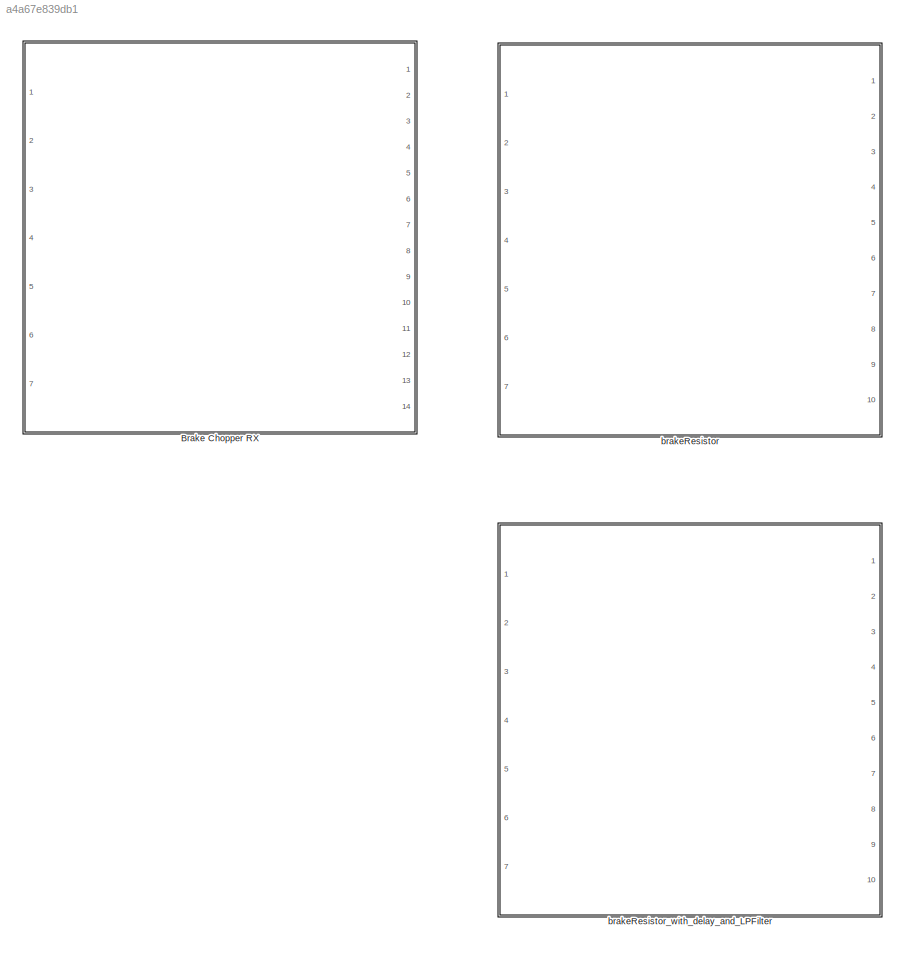
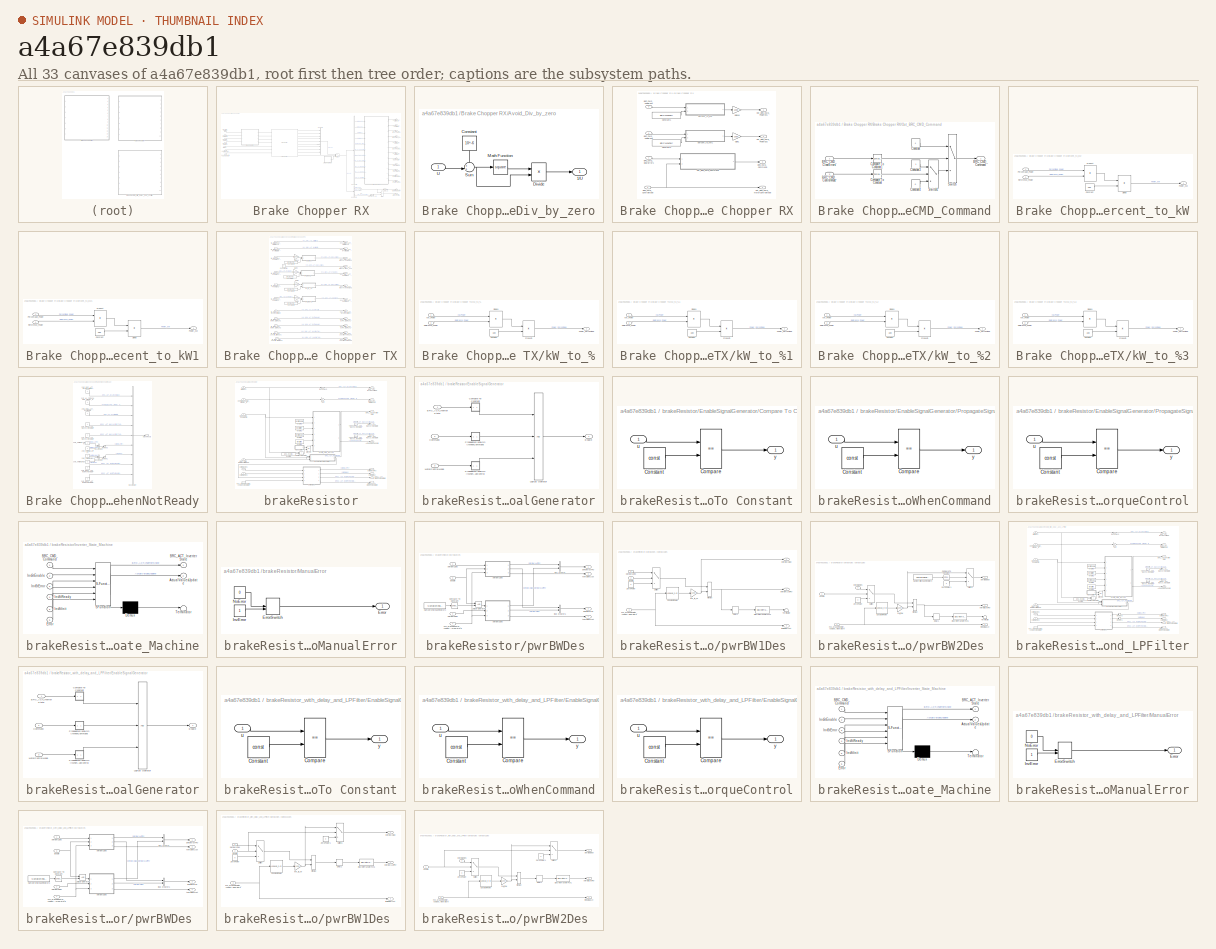
[diagram: thumbnail index - all 33 canvases of the model, root first then tree order]
MODEL slx_a4a67e839db1
KIND library
CONFIG AbsTol = auto
CONFIG FixedStep = 0.001
CONFIG MaxStep = auto
CONFIG MinStep = auto
CONFIG RelTol = 1e-3
CONFIG SampleTimeConstraint = Unconstrained
CONFIG Solver = ode1
CONFIG SolverMode = Auto
CONFIG SolverName = ode1
CONFIG StartTime = 0.0
CONFIG StopTime = Inf
BLOCK [SubSystem] Brake Chopper RX
  Ports = [7, 14]
  RequestExecContextInheritance = off
  Variant = off
BLOCK [Sum] Brake Chopper RX/Add
  InputSameDT = off
  OutDataTypeStr = Inherit: Inherit via internal rule
  Ports = [2, 1]
  SaturateOnIntegerOverflow = off
BLOCK [SubSystem] Brake Chopper RX/Avoid_Div_by_zero
  Ports = [1, 1]
  RequestExecContextInheritance = off
  Variant = off
BLOCK [Outport] Brake Chopper RX/Avoid_Div_by_zero/1//U
  IconDisplay = Port number
BLOCK [Constant] Brake Chopper RX/Avoid_Div_by_zero/Constant
  Value = 10^-6
BLOCK [Product] Brake Chopper RX/Avoid_Div_by_zero/Divide
  InputSameDT = off
  Inputs = /*
  OutDataTypeStr = Inherit: Inherit via internal rule
  Ports = [2, 1]
  RndMeth = Floor
  SaturateOnIntegerOverflow = off
BLOCK [Math] Brake Chopper RX/Avoid_Div_by_zero/Math Function
  Operator = square
  Ports = [1, 1]
BLOCK [Sum] Brake Chopper RX/Avoid_Div_by_zero/Sum
  IconShape = round
  InputSameDT = off
  Inputs = ++|
  OutDataTypeStr = Inherit: Inherit via internal rule
  Ports = [2, 1]
  SaturateOnIntegerOverflow = off
BLOCK [Inport] Brake Chopper RX/Avoid_Div_by_zero/U
  IconDisplay = Port number
BLOCK [Inport] Brake Chopper RX/BRC_CMD_ClearErrors
  IconDisplay = Port number
BLOCK [Inport] Brake Chopper RX/BRC_CMD_ControlMode
  IconDisplay = Port number
  Port = 2
BLOCK [Inport] Brake Chopper RX/BRC_CMD_PowerCh1
  IconDisplay = Port number
  Port = 3
BLOCK [Inport] Brake Chopper RX/BRC_CMD_PowerCh2
  IconDisplay = Port number
  Port = 4
BLOCK [SubSystem] Brake Chopper RX/Brake Chopper RX
  Ports = [4, 4]
  RequestExecContextInheritance = off
  Variant = off
BLOCK [Inport] Brake Chopper RX/Brake Chopper RX/BRC_CMD_ClearErrors
  IconDisplay = Port number
BLOCK [Outport] Brake Chopper RX/Brake Chopper RX/BRC_CMD_Command
  IconDisplay = Port number
  Port = 3
BLOCK [Inport] Brake Chopper RX/Brake Chopper RX/BRC_CMD_ControlMode
  IconDisplay = Port number
  Port = 2
BLOCK [Inport] Brake Chopper RX/Brake Chopper RX/BRC_CMD_PowerCh1
  IconDisplay = Port number
  Port = 3
BLOCK [Inport] Brake Chopper RX/Brake Chopper RX/BRC_CMD_PowerCh2
  IconDisplay = Port number
  Port = 4
BLOCK [Constant] Brake Chopper RX/Brake Chopper RX/Constant1
  Value = BRCMaxPwr
BLOCK [Constant] Brake Chopper RX/Brake Chopper RX/Constant2
  Value = BRCMaxPwr
BLOCK [Gain] Brake Chopper RX/Brake Chopper RX/Gain1
  Gain = 1000
  OutDataTypeStr = Inherit: Inherit via internal rule
  ParamDataTypeStr = Inherit: Inherit via internal rule
  SaturateOnIntegerOverflow = off
BLOCK [Gain] Brake Chopper RX/Brake Chopper RX/Gain40
  Gain = 1000
  OutDataTypeStr = Inherit: Inherit via internal rule
  ParamDataTypeStr = Inherit: Inherit via internal rule
  SaturateOnIntegerOverflow = off
BLOCK [SubSystem] Brake Chopper RX/Brake Chopper RX/Out_BRC_CMD_Command
  Ports = [2, 1]
  RequestExecContextInheritance = off
  Variant = off
BLOCK [Inport] Brake Chopper RX/Brake Chopper RX/Out_BRC_CMD_Command/BRC_CMD_ClearErrors
  IconDisplay = Port number
BLOCK [Outport] Brake Chopper RX/Brake Chopper RX/Out_BRC_CMD_Command/BRC_CMD_Command
  IconDisplay = Port number
BLOCK [Inport] Brake Chopper RX/Brake Chopper RX/Out_BRC_CMD_Command/BRC_CMD_ControlMode
  IconDisplay = Port number
  Port = 2
BLOCK [Reference] Brake Chopper RX/Brake Chopper RX/Out_BRC_CMD_Command/Compare To Constant  REF=simulink/Logic and Bit
Operations/Compare
To Constant
  Ports = [1, 1]
  SourceBlock = simulink/Logic and Bit\nOperations/Compare\nTo Constant
  SourceType = Compare To Constant
BLOCK [Reference] Brake Chopper RX/Brake Chopper RX/Out_BRC_CMD_Command/Compare To Constant1  REF=simulink/Logic and Bit
Operations/Compare
To Constant
  Ports = [1, 1]
  SourceBlock = simulink/Logic and Bit\nOperations/Compare\nTo Constant
  SourceType = Compare To Constant
BLOCK [Constant] Brake Chopper RX/Brake Chopper RX/Out_BRC_CMD_Command/Constant
  Value = 4
BLOCK [Constant] Brake Chopper RX/Brake Chopper RX/Out_BRC_CMD_Command/Constant3
BLOCK [Constant] Brake Chopper RX/Brake Chopper RX/Out_BRC_CMD_Command/Constant4
  Value = 0
BLOCK [Switch] Brake Chopper RX/Brake Chopper RX/Out_BRC_CMD_Command/Switch
  InputSameDT = off
  SaturateOnIntegerOverflow = off
  Threshold = 0.5
BLOCK [Switch] Brake Chopper RX/Brake Chopper RX/Out_BRC_CMD_Command/Switch1
  InputSameDT = off
  SaturateOnIntegerOverflow = off
  Threshold = 0.5
BLOCK [Outport] Brake Chopper RX/Brake Chopper RX/Out_BRC_CMD_MotorControlMode
  IconDisplay = Port number
  Port = 4
BLOCK [Outport] Brake Chopper RX/Brake Chopper RX/Out_BRC_CMD_PowerCh1
  IconDisplay = Port number
BLOCK [Outport] Brake Chopper RX/Brake Chopper RX/Out_BRC_CMD_PowerCh2
  IconDisplay = Port number
  Port = 2
BLOCK [SubSystem] Brake Chopper RX/Brake Chopper RX/percent_to_kW
  Ports = [2, 1]
  RequestExecContextInheritance = off
  Variant = off
BLOCK [Constant] Brake Chopper RX/Brake Chopper RX/percent_to_kW/Constant
  Value = 100
BLOCK [Product] Brake Chopper RX/Brake Chopper RX/percent_to_kW/Divide
  InputSameDT = off
  Inputs = */
  OutDataTypeStr = Inherit: Inherit via internal rule
  Ports = [2, 1]
  RndMeth = Floor
  SaturateOnIntegerOverflow = off
BLOCK [Inport] Brake Chopper RX/Brake Chopper RX/percent_to_kW/Percentage_Power
  IconDisplay = Port number
BLOCK [Outport] Brake Chopper RX/Brake Chopper RX/percent_to_kW/Power_kW
  IconDisplay = Port number
BLOCK [Product] Brake Chopper RX/Brake Chopper RX/percent_to_kW/Product
  InputSameDT = off
  OutDataTypeStr = Inherit: Inherit via internal rule
  Ports = [2, 1]
  SaturateOnIntegerOverflow = off
BLOCK [Inport] Brake Chopper RX/Brake Chopper RX/percent_to_kW/Reference_Power
  IconDisplay = Port number
  Port = 2
BLOCK [SubSystem] Brake Chopper RX/Brake Chopper RX/percent_to_kW1
  Ports = [2, 1]
  RequestExecContextInheritance = off
  Variant = off
BLOCK [Constant] Brake Chopper RX/Brake Chopper RX/percent_to_kW1/Constant
  Value = 100
BLOCK [Product] Brake Chopper RX/Brake Chopper RX/percent_to_kW1/Divide
  InputSameDT = off
  Inputs = */
  OutDataTypeStr = Inherit: Inherit via internal rule
  Ports = [2, 1]
  RndMeth = Floor
  SaturateOnIntegerOverflow = off
BLOCK [Inport] Brake Chopper RX/Brake Chopper RX/percent_to_kW1/Percentage_Power
  IconDisplay = Port number
BLOCK [Outport] Brake Chopper RX/Brake Chopper RX/percent_to_kW1/Power_kW
  IconDisplay = Port number
BLOCK [Product] Brake Chopper RX/Brake Chopper RX/percent_to_kW1/Product
  InputSameDT = off
  OutDataTypeStr = Inherit: Inherit via internal rule
  Ports = [2, 1]
  SaturateOnIntegerOverflow = off
BLOCK [Inport] Brake Chopper RX/Brake Chopper RX/percent_to_kW1/Reference_Power
  IconDisplay = Port number
  Port = 2
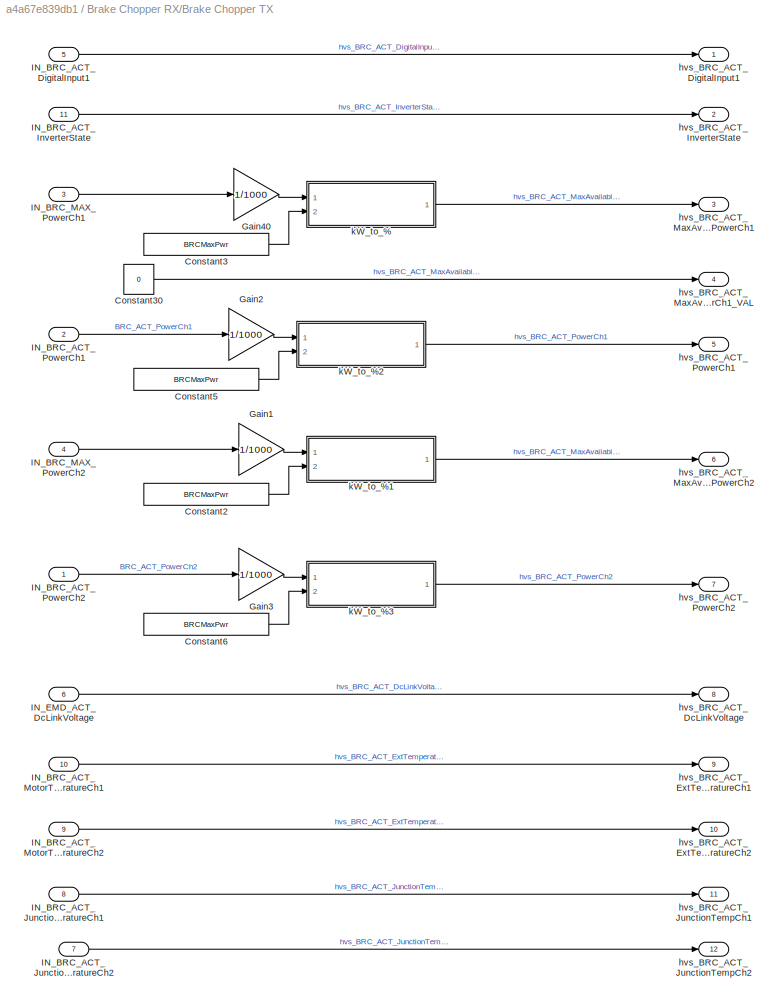
BLOCK [SubSystem] Brake Chopper RX/Brake Chopper TX
  Ports = [11, 12]
  RequestExecContextInheritance = off
  Variant = off
BLOCK [Constant] Brake Chopper RX/Brake Chopper TX/Constant2
  Value = BRCMaxPwr
BLOCK [Constant] Brake Chopper RX/Brake Chopper TX/Constant3
  Value = BRCMaxPwr
BLOCK [Constant] Brake Chopper RX/Brake Chopper TX/Constant30
  Value = 0
BLOCK [Constant] Brake Chopper RX/Brake Chopper TX/Constant5
  Value = BRCMaxPwr
BLOCK [Constant] Brake Chopper RX/Brake Chopper TX/Constant6
  Value = BRCMaxPwr
BLOCK [Gain] Brake Chopper RX/Brake Chopper TX/Gain1
  Gain = 1/1000
  OutDataTypeStr = Inherit: Inherit via internal rule
  ParamDataTypeStr = Inherit: Inherit via internal rule
  SaturateOnIntegerOverflow = off
BLOCK [Gain] Brake Chopper RX/Brake Chopper TX/Gain2
  Gain = 1/1000
  OutDataTypeStr = Inherit: Inherit via internal rule
  ParamDataTypeStr = Inherit: Inherit via internal rule
  SaturateOnIntegerOverflow = off
BLOCK [Gain] Brake Chopper RX/Brake Chopper TX/Gain3
  Gain = 1/1000
  OutDataTypeStr = Inherit: Inherit via internal rule
  ParamDataTypeStr = Inherit: Inherit via internal rule
  SaturateOnIntegerOverflow = off
BLOCK [Gain] Brake Chopper RX/Brake Chopper TX/Gain40
  Gain = 1/1000
  OutDataTypeStr = Inherit: Inherit via internal rule
  ParamDataTypeStr = Inherit: Inherit via internal rule
  SaturateOnIntegerOverflow = off
BLOCK [Inport] Brake Chopper RX/Brake Chopper TX/IN_BRC_ACT_DigitalInput1
  IconDisplay = Port number
  Port = 5
BLOCK [Inport] Brake Chopper RX/Brake Chopper TX/IN_BRC_ACT_InverterState
  IconDisplay = Port number
  Port = 11
BLOCK [Inport] Brake Chopper RX/Brake Chopper TX/IN_BRC_ACT_JunctionTemperatureCh1
  IconDisplay = Port number
  Port = 8
BLOCK [Inport] Brake Chopper RX/Brake Chopper TX/IN_BRC_ACT_JunctionTemperatureCh2
  IconDisplay = Port number
  Port = 7
BLOCK [Inport] Brake Chopper RX/Brake Chopper TX/IN_BRC_ACT_MotorTemperatureCh1
  IconDisplay = Port number
  Port = 10
BLOCK [Inport] Brake Chopper RX/Brake Chopper TX/IN_BRC_ACT_MotorTemperatureCh2
  IconDisplay = Port number
  Port = 9
BLOCK [Inport] Brake Chopper RX/Brake Chopper TX/IN_BRC_ACT_PowerCh1
  IconDisplay = Port number
  Port = 2
BLOCK [Inport] Brake Chopper RX/Brake Chopper TX/IN_BRC_ACT_PowerCh2
  IconDisplay = Port number
BLOCK [Inport] Brake Chopper RX/Brake Chopper TX/IN_BRC_MAX_PowerCh1
  IconDisplay = Port number
  Port = 3
BLOCK [Inport] Brake Chopper RX/Brake Chopper TX/IN_BRC_MAX_PowerCh2
  IconDisplay = Port number
  Port = 4
BLOCK [Inport] Brake Chopper RX/Brake Chopper TX/IN_EMD_ACT_DcLinkVoltage
  IconDisplay = Port number
  Port = 6
BLOCK [Outport] Brake Chopper RX/Brake Chopper TX/hvs_BRC_ACT_DcLinkVoltage
  IconDisplay = Port number
  Port = 8
BLOCK [Outport] Brake Chopper RX/Brake Chopper TX/hvs_BRC_ACT_DigitalInput1
  IconDisplay = Port number
BLOCK [Outport] Brake Chopper RX/Brake Chopper TX/hvs_BRC_ACT_ExtTemperatureCh1
  IconDisplay = Port number
  Port = 9
BLOCK [Outport] Brake Chopper RX/Brake Chopper TX/hvs_BRC_ACT_ExtTemperatureCh2
  IconDisplay = Port number
  Port = 10
BLOCK [Outport] Brake Chopper RX/Brake Chopper TX/hvs_BRC_ACT_InverterState
  IconDisplay = Port number
  Port = 2
BLOCK [Outport] Brake Chopper RX/Brake Chopper TX/hvs_BRC_ACT_JunctionTempCh1
  IconDisplay = Port number
  Port = 11
BLOCK [Outport] Brake Chopper RX/Brake Chopper TX/hvs_BRC_ACT_JunctionTempCh2
  IconDisplay = Port number
  Port = 12
BLOCK [Outport] Brake Chopper RX/Brake Chopper TX/hvs_BRC_ACT_MaxAvailablePowerCh1
  IconDisplay = Port number
  Port = 3
BLOCK [Outport] Brake Chopper RX/Brake Chopper TX/hvs_BRC_ACT_MaxAvailablePowerCh1_VAL
  IconDisplay = Port number
  Port = 4
BLOCK [Outport] Brake Chopper RX/Brake Chopper TX/hvs_BRC_ACT_MaxAvailablePowerCh2
  IconDisplay = Port number
  Port = 6
BLOCK [Outport] Brake Chopper RX/Brake Chopper TX/hvs_BRC_ACT_PowerCh1
  IconDisplay = Port number
  Port = 5
BLOCK [Outport] Brake Chopper RX/Brake Chopper TX/hvs_BRC_ACT_PowerCh2
  IconDisplay = Port number
  Port = 7
BLOCK [SubSystem] Brake Chopper RX/Brake Chopper TX/kW_to_%
  Ports = [2, 1]
  RequestExecContextInheritance = off
  Variant = off
BLOCK [Constant] Brake Chopper RX/Brake Chopper TX/kW_to_%/Constant
  Value = 100
BLOCK [Product] Brake Chopper RX/Brake Chopper TX/kW_to_%/Divide1
  InputSameDT = off
  Inputs = */
  OutDataTypeStr = Inherit: Inherit via internal rule
  Ports = [2, 1]
  RndMeth = Floor
  SaturateOnIntegerOverflow = off
BLOCK [Outport] Brake Chopper RX/Brake Chopper TX/kW_to_%/Power_Percentage
  IconDisplay = Port number
BLOCK [Product] Brake Chopper RX/Brake Chopper TX/kW_to_%/Product1
  InputSameDT = off
  OutDataTypeStr = Inherit: Inherit via internal rule
  Ports = [2, 1]
  SaturateOnIntegerOverflow = off
BLOCK [Inport] Brake Chopper RX/Brake Chopper TX/kW_to_%/Reference_Power
  IconDisplay = Port number
  Port = 2
BLOCK [Inport] Brake Chopper RX/Brake Chopper TX/kW_to_%/kW_Power
  IconDisplay = Port number
BLOCK [SubSystem] Brake Chopper RX/Brake Chopper TX/kW_to_%1
  Ports = [2, 1]
  RequestExecContextInheritance = off
  Variant = off
BLOCK [Constant] Brake Chopper RX/Brake Chopper TX/kW_to_%1/Constant
  Value = 100
BLOCK [Product] Brake Chopper RX/Brake Chopper TX/kW_to_%1/Divide1
  InputSameDT = off
  Inputs = */
  OutDataTypeStr = Inherit: Inherit via internal rule
  Ports = [2, 1]
  RndMeth = Floor
  SaturateOnIntegerOverflow = off
BLOCK [Outport] Brake Chopper RX/Brake Chopper TX/kW_to_%1/Power_Percentage
  IconDisplay = Port number
BLOCK [Product] Brake Chopper RX/Brake Chopper TX/kW_to_%1/Product1
  InputSameDT = off
  OutDataTypeStr = Inherit: Inherit via internal rule
  Ports = [2, 1]
  SaturateOnIntegerOverflow = off
BLOCK [Inport] Brake Chopper RX/Brake Chopper TX/kW_to_%1/Reference_Power
  IconDisplay = Port number
  Port = 2
BLOCK [Inport] Brake Chopper RX/Brake Chopper TX/kW_to_%1/kW_Power
  IconDisplay = Port number
BLOCK [SubSystem] Brake Chopper RX/Brake Chopper TX/kW_to_%2
  Ports = [2, 1]
  RequestExecContextInheritance = off
  Variant = off
BLOCK [Constant] Brake Chopper RX/Brake Chopper TX/kW_to_%2/Constant
  Value = 100
BLOCK [Product] Brake Chopper RX/Brake Chopper TX/kW_to_%2/Divide1
  InputSameDT = off
  Inputs = */
  OutDataTypeStr = Inherit: Inherit via internal rule
  Ports = [2, 1]
  RndMeth = Floor
  SaturateOnIntegerOverflow = off
BLOCK [Outport] Brake Chopper RX/Brake Chopper TX/kW_to_%2/Power_Percentage
  IconDisplay = Port number
BLOCK [Product] Brake Chopper RX/Brake Chopper TX/kW_to_%2/Product1
  InputSameDT = off
  OutDataTypeStr = Inherit: Inherit via internal rule
  Ports = [2, 1]
  SaturateOnIntegerOverflow = off
BLOCK [Inport] Brake Chopper RX/Brake Chopper TX/kW_to_%2/Reference_Power
  IconDisplay = Port number
  Port = 2
BLOCK [Inport] Brake Chopper RX/Brake Chopper TX/kW_to_%2/kW_Power
  IconDisplay = Port number
BLOCK [SubSystem] Brake Chopper RX/Brake Chopper TX/kW_to_%3
  Ports = [2, 1]
  RequestExecContextInheritance = off
  Variant = off
BLOCK [Constant] Brake Chopper RX/Brake Chopper TX/kW_to_%3/Constant
  Value = 100
BLOCK [Product] Brake Chopper RX/Brake Chopper TX/kW_to_%3/Divide1
  InputSameDT = off
  Inputs = */
  OutDataTypeStr = Inherit: Inherit via internal rule
  Ports = [2, 1]
  RndMeth = Floor
  SaturateOnIntegerOverflow = off
BLOCK [Outport] Brake Chopper RX/Brake Chopper TX/kW_to_%3/Power_Percentage
  IconDisplay = Port number
BLOCK [Product] Brake Chopper RX/Brake Chopper TX/kW_to_%3/Product1
  InputSameDT = off
  OutDataTypeStr = Inherit: Inherit via internal rule
  Ports = [2, 1]
  SaturateOnIntegerOverflow = off
BLOCK [Inport] Brake Chopper RX/Brake Chopper TX/kW_to_%3/Reference_Power
  IconDisplay = Port number
  Port = 2
BLOCK [Inport] Brake Chopper RX/Brake Chopper TX/kW_to_%3/kW_Power
  IconDisplay = Port number
BLOCK [BusCreator] Brake Chopper RX/Bus Creator2
  DisplayOption = bar
  InheritFromInputs = on
  Inputs = 9
  Ports = [9, 1]
BLOCK [BusSelector] Brake Chopper RX/Bus Selector1
  OutputSignals = pwrBWActPhy.pwrBW2ActPhy,pwrBWActPhy.pwrBW1ActPhy,BRC_ACT_DcLinkVoltage
  Ports = [1, 3]
BLOCK [BusSelector] Brake Chopper RX/Bus Selector3
  OutputSignals = pwrBWActPhy.pwrBW2ActPhy,pwrBWActPhy.pwrBW1ActPhy,pwrBWMax.pwrBW1Max,pwrBWMax.pwrBW2Max,HVFreigabeHW2_SiRelay_D,BRC_ACT_DcLinkVoltage,BRC2_ACT_MaxJunctionTemperature,BRC1_ACT_MaxJunctionTemperature,BRC2_ACT_MotorTemperature,BRC1_ACT_MotorTemperature,BRC_ACT_InverterState
  Ports = [1, 11]
BLOCK [Product] Brake Chopper RX/Divide
  InputSameDT = off
  Inputs = **
  OutDataTypeStr = Inherit: Inherit via internal rule
  Ports = [2, 1]
  RndMeth = Floor
  SaturateOnIntegerOverflow = off
BLOCK [Inport] Brake Chopper RX/HVFreigabeHW2_SiRelay_D
  IconDisplay = Port number
  Port = 6
BLOCK [Switch] Brake Chopper RX/Switch1
  InputSameDT = off
  SaturateOnIntegerOverflow = off
  Threshold = 0.5
BLOCK [Gain] Brake Chopper RX/W_to_kW
  AttributesFormatString = %<Description>
  Gain = 1/1000
  OutDataTypeStr = Inherit: Inherit via internal rule
  ParamDataTypeStr = Inherit: Inherit via internal rule
  SaturateOnIntegerOverflow = off
BLOCK [SubSystem] Brake Chopper RX/ZeroWhenNotReady
  Ports = [0, 1]
  RequestExecContextInheritance = off
  TreatAsAtomicUnit = on
  Variant = off
BLOCK [BusCreator] Brake Chopper RX/ZeroWhenNotReady/Bus Creator
  DisplayOption = bar
  InheritFromInputs = on
  Inputs = 9
  Ports = [9, 1]
BLOCK [BusCreator] Brake Chopper RX/ZeroWhenNotReady/Bus Creator1
  DisplayOption = bar
  InheritFromInputs = on
  Inputs = 2
  Ports = [2, 1]
BLOCK [BusCreator] Brake Chopper RX/ZeroWhenNotReady/Bus Creator2
  DisplayOption = bar
  InheritFromInputs = on
  Inputs = 2
  Ports = [2, 1]
BLOCK [Memory] Brake Chopper RX/ZeroWhenNotReady/Memory1
BLOCK [Memory] Brake Chopper RX/ZeroWhenNotReady/Memory3
BLOCK [Outport] Brake Chopper RX/ZeroWhenNotReady/brakeResB
  IconDisplay = Port number
BLOCK [Constant] Brake Chopper RX/ZeroWhenNotReady/zero_BRC1_ACT_MaxJunctionTemperature
  Value = 0
BLOCK [Constant] Brake Chopper RX/ZeroWhenNotReady/zero_BRC1_ACT_MotorTemperature
  Value = 0
BLOCK [Constant] Brake Chopper RX/ZeroWhenNotReady/zero_BRC2_ACT_MaxJunctionTemperature
  Value = 0
BLOCK [Constant] Brake Chopper RX/ZeroWhenNotReady/zero_BRC2_ACT_MotorTemperature
  Value = 0
BLOCK [Constant] Brake Chopper RX/ZeroWhenNotReady/zero_BRC_ACT_DcLinkVoltage
  Value = 0
BLOCK [Constant] Brake Chopper RX/ZeroWhenNotReady/zero_BRC_ACT_InverterState
  Value = 0
BLOCK [Constant] Brake Chopper RX/ZeroWhenNotReady/zero_HV_FreigabeHW2_SiRelay_D
  Value = 0
BLOCK [Constant] Brake Chopper RX/ZeroWhenNotReady/zero_pwrBW1ActPhy
  Value = 0
BLOCK [Constant] Brake Chopper RX/ZeroWhenNotReady/zero_pwrBW1Max
  Value = 0
BLOCK [Constant] Brake Chopper RX/ZeroWhenNotReady/zero_pwrBW2ActPhy
  Value = 0
BLOCK [Constant] Brake Chopper RX/ZeroWhenNotReady/zero_pwrBW2Max
  Value = 0
BLOCK [Reference] Brake Chopper RX/brakeResistor  REF=Energy_converter_Electrical_to_Thermal/brakeResistor
  Ports = [7, 10]
  SourceBlock = Energy_converter_Electrical_to_Thermal/brakeResistor
BLOCK [Outport] Brake Chopper RX/hvs_BRC_ACT_DcLinkVoltage
  IconDisplay = Port number
  Port = 8
BLOCK [Outport] Brake Chopper RX/hvs_BRC_ACT_DigitalInput1
  IconDisplay = Port number
BLOCK [Outport] Brake Chopper RX/hvs_BRC_ACT_ExtTemperatureCh1
  IconDisplay = Port number
  Port = 9
BLOCK [Outport] Brake Chopper RX/hvs_BRC_ACT_ExtTemperatureCh2
  IconDisplay = Port number
  Port = 10
BLOCK [Outport] Brake Chopper RX/hvs_BRC_ACT_InverterState
  IconDisplay = Port number
  Port = 2
BLOCK [Outport] Brake Chopper RX/hvs_BRC_ACT_JunctionTempCh1
  IconDisplay = Port number
  Port = 11
BLOCK [Outport] Brake Chopper RX/hvs_BRC_ACT_JunctionTempCh2
  IconDisplay = Port number
  Port = 12
BLOCK [Outport] Brake Chopper RX/hvs_BRC_ACT_MaxAvailablePowerCh1
  IconDisplay = Port number
  Port = 3
BLOCK [Outport] Brake Chopper RX/hvs_BRC_ACT_MaxAvailablePowerCh1_VAL
  IconDisplay = Port number
  Port = 4
BLOCK [Outport] Brake Chopper RX/hvs_BRC_ACT_MaxAvailablePowerCh2
  IconDisplay = Port number
  Port = 6
BLOCK [Outport] Brake Chopper RX/hvs_BRC_ACT_PowerCh1
  IconDisplay = Port number
  Port = 5
BLOCK [Outport] Brake Chopper RX/hvs_BRC_ACT_PowerCh2
  IconDisplay = Port number
  Port = 7
BLOCK [Inport] Brake Chopper RX/hvs_brakeResistor_coolant_temperature
  IconDisplay = Port number
  Port = 7
BLOCK [Outport] Brake Chopper RX/hvs_brakeResistor_wasteHeat_power
  IconDisplay = Port number
  Port = 13
BLOCK [Outport] Brake Chopper RX/hvs_dcLink_BrakeResistor_current
  IconDisplay = Port number
  Port = 14
BLOCK [Inport] Brake Chopper RX/vltBatPhy
  IconDisplay = Port number
  Port = 5
BLOCK [SubSystem] brakeResistor
  Ports = [7, 10]
  RequestExecContextInheritance = off
  Variant = off
BLOCK [Outport] brakeResistor/ BRC_ACT_DigitalInput1
  IconDisplay = Port number
  Port = 2
BLOCK [Outport] brakeResistor/ActualValueUpdate
  IconDisplay = Port number
  Port = 10
BLOCK [Outport] brakeResistor/BRC1_ACT_MaxJunctionTemperature
  IconDisplay = Port number
  Port = 4
BLOCK [Outport] brakeResistor/BRC1_ACT_MotorTemperature
  IconDisplay = Port number
  Port = 8
BLOCK [Outport] brakeResistor/BRC2_ACT_MaxJunctionTemperature
  IconDisplay = Port number
  Port = 5
BLOCK [Outport] brakeResistor/BRC2_ACT_MotorTemperature
  IconDisplay = Port number
  Port = 9
BLOCK [Outport] brakeResistor/BRC_ACT_DcLinkVoltage
  IconDisplay = Port number
BLOCK [Outport] brakeResistor/BRC_ACT_InverterState
  IconDisplay = Port number
  Port = 3
BLOCK [Inport] brakeResistor/BRC_CMD_Commamd
  IconDisplay = Port number
  Port = 3
BLOCK [Inport] brakeResistor/BRC_CMD_MotorControlMode
  IconDisplay = Port number
  Port = 4
BLOCK [SubSystem] brakeResistor/EnableSignalGenerator
  Ports = [3, 1]
  RequestExecContextInheritance = off
  TreatAsAtomicUnit = on
  Variant = off
BLOCK [Inport] brakeResistor/EnableSignalGenerator/BRC_ACT_InverterState
  IconDisplay = Port number
BLOCK [Inport] brakeResistor/EnableSignalGenerator/Command
  IconDisplay = Port number
  Port = 2
BLOCK [SubSystem] brakeResistor/EnableSignalGenerator/Compare To Constant
  Ports = [1, 1]
  RequestExecContextInheritance = off
  Variant = off
BLOCK [RelationalOperator] brakeResistor/EnableSignalGenerator/Compare To Constant/Compare
  Operator = ==
  OutDataTypeStr = boolean
  Ports = [2, 1]
BLOCK [Constant] brakeResistor/EnableSignalGenerator/Compare To Constant/Constant
  DisableCoverage = on
  OutDataTypeStr = Inherit: Inherit via back propagation
  Value = const
BLOCK [Inport] brakeResistor/EnableSignalGenerator/Compare To Constant/u
  IconDisplay = Port number
BLOCK [Outport] brakeResistor/EnableSignalGenerator/Compare To Constant/y
  IconDisplay = Port number
BLOCK [Outport] brakeResistor/EnableSignalGenerator/Enable
  IconDisplay = Port number
BLOCK [Logic] brakeResistor/EnableSignalGenerator/Logical Operator
  AllPortsSameDT = off
  Inputs = 3
  OutDataTypeStr = boolean
  Ports = [3, 1]
BLOCK [Inport] brakeResistor/EnableSignalGenerator/MotorControlMode
  IconDisplay = Port number
  Port = 3
BLOCK [SubSystem] brakeResistor/EnableSignalGenerator/PropagateSignalOnlyWhenCommand
  Ports = [1, 1]
  RequestExecContextInheritance = off
  Variant = off
BLOCK [RelationalOperator] brakeResistor/EnableSignalGenerator/PropagateSignalOnlyWhenCommand/Compare
  Operator = ==
  OutDataTypeStr = boolean
  Ports = [2, 1]
BLOCK [Constant] brakeResistor/EnableSignalGenerator/PropagateSignalOnlyWhenCommand/Constant
  DisableCoverage = on
  OutDataTypeStr = Inherit: Inherit via back propagation
  Value = const
BLOCK [Inport] brakeResistor/EnableSignalGenerator/PropagateSignalOnlyWhenCommand/u
  IconDisplay = Port number
BLOCK [Outport] brakeResistor/EnableSignalGenerator/PropagateSignalOnlyWhenCommand/y
  IconDisplay = Port number
BLOCK [SubSystem] brakeResistor/EnableSignalGenerator/PropagateSignalOnlyWhenTorqueControl
  Ports = [1, 1]
  RequestExecContextInheritance = off
  Variant = off
BLOCK [RelationalOperator] brakeResistor/EnableSignalGenerator/PropagateSignalOnlyWhenTorqueControl/Compare
  Operator = ==
  OutDataTypeStr = boolean
  Ports = [2, 1]
BLOCK [Constant] brakeResistor/EnableSignalGenerator/PropagateSignalOnlyWhenTorqueControl/Constant
  DisableCoverage = on
  OutDataTypeStr = Inherit: Inherit via back propagation
  Value = const
BLOCK [Inport] brakeResistor/EnableSignalGenerator/PropagateSignalOnlyWhenTorqueControl/u
  IconDisplay = Port number
BLOCK [Outport] brakeResistor/EnableSignalGenerator/PropagateSignalOnlyWhenTorqueControl/y
  IconDisplay = Port number
BLOCK [Logic] brakeResistor/Error_OR
  AllPortsSameDT = off
  Operator = OR
  OutDataTypeStr = boolean
  Ports = [2, 1]
BLOCK [Gain] brakeResistor/Gain
  OutDataTypeStr = Inherit: Inherit via internal rule
  ParamDataTypeStr = Inherit: Inherit via internal rule
  SaturateOnIntegerOverflow = off
BLOCK [Inport] brakeResistor/HVFreigabeHW2_SiRelay_D
  IconDisplay = Port number
  Port = 6
BLOCK [Constant] brakeResistor/InvError 1
  Value = InvStError
BLOCK [Constant] brakeResistor/InvError 2
  Value = InvStReady
BLOCK [Constant] brakeResistor/InvError 3
  Value = InvStEnable
BLOCK [Constant] brakeResistor/InvError 4
  Value = InvStInit
BLOCK [Constant] brakeResistor/InvError 5
  Value = BRC_InvStError
BLOCK [SubSystem] brakeResistor/Inverter_State_Machine
  ErrorFcn = Stateflow.Translate.translate
  PermitHierarchicalResolution = ExplicitOnly
  Ports = [6, 2]
  RequestExecContextInheritance = off
  SFBlockType = Chart
  TreatAsAtomicUnit = on
  Variant = off
BLOCK [Demux] brakeResistor/Inverter_State_Machine/ Demux 
  Outputs = 1
  Ports = [1, 1]
BLOCK [S-Function] brakeResistor/Inverter_State_Machine/ SFunction 
  EnableBusSupport = off
  FunctionName = sf_sfun
  PortCounts = [6 3]
  Ports = [6, 3]
  SFunctionDeploymentMode = off
  Tag = Stateflow S-Function Energy_converter_Electrical_to_Thermal 2
BLOCK [Terminator] brakeResistor/Inverter_State_Machine/ Terminator 
BLOCK [Outport] brakeResistor/Inverter_State_Machine/ActualValuesUpdate
  IconDisplay = Port number
  Port = 2
BLOCK [Outport] brakeResistor/Inverter_State_Machine/BRC_ACT_InverterState
  IconDisplay = Port number
BLOCK [Inport] brakeResistor/Inverter_State_Machine/BRC_CMD_Command
  IconDisplay = Port number
BLOCK [Inport] brakeResistor/Inverter_State_Machine/Error
  IconDisplay = Port number
  Port = 6
BLOCK [Inport] brakeResistor/Inverter_State_Machine/InvStEnable
  IconDisplay = Port number
  Port = 2
BLOCK [Inport] brakeResistor/Inverter_State_Machine/InvStError
  IconDisplay = Port number
  Port = 3
BLOCK [Inport] brakeResistor/Inverter_State_Machine/InvStInit
  IconDisplay = Port number
  Port = 5
BLOCK [Inport] brakeResistor/Inverter_State_Machine/InvStReady
  IconDisplay = Port number
  Port = 4
BLOCK [SubSystem] brakeResistor/ManualError
  Ports = [0, 1]
  RequestExecContextInheritance = off
  TreatAsAtomicUnit = on
  Variant = off
BLOCK [Outport] brakeResistor/ManualError/Error
  IconDisplay = Port number
BLOCK [ManualSwitch] brakeResistor/ManualError/ErrorSwitch
BLOCK [Constant] brakeResistor/ManualError/InvError
BLOCK [Constant] brakeResistor/ManualError/NoError
  Value = 0
BLOCK [RelationalOperator] brakeResistor/Relational Operator
  InputSameDT = off
  Operator = <
  OutDataTypeStr = boolean
  Ports = [2, 1]
BLOCK [Gain] brakeResistor/Rename15
  OutDataTypeStr = Inherit: Inherit via internal rule
  ParamDataTypeStr = Inherit: Inherit via internal rule
  SaturateOnIntegerOverflow = off
BLOCK [Constant] brakeResistor/const_BRC1_ACT_MaxJunctionTemperature
  Value = 30
BLOCK [Constant] brakeResistor/const_BRC2_ACT_MaxJunctionTemperature
  Value = 30
BLOCK [Inport] brakeResistor/hvs_brakeResistor_coolant_temperature
  IconDisplay = Port number
  Port = 7
BLOCK [Inport] brakeResistor/pwrBW1Des
  IconDisplay = Port number
BLOCK [Inport] brakeResistor/pwrBW2Des
  IconDisplay = Port number
  Port = 2
BLOCK [Outport] brakeResistor/pwrBWActPhy
  IconDisplay = Port number
  Port = 6
BLOCK [SubSystem] brakeResistor/pwrBWDes 
  Ports = [4, 4]
  RequestExecContextInheritance = off
  Variant = off
BLOCK [BusCreator] brakeResistor/pwrBWDes /Bus Creator
  DisplayOption = bar
  InheritFromInputs = on
  Inputs = 2
  Ports = [2, 1]
BLOCK [BusCreator] brakeResistor/pwrBWDes /Bus Creator1
  DisplayOption = bar
  InheritFromInputs = on
  Inputs = 2
  Ports = [2, 1]
BLOCK [Reference] brakeResistor/pwrBWDes /Compare To Constant  REF=simulink/Logic and Bit
Operations/Compare
To Constant
  Ports = [1, 1]
  SourceBlock = simulink/Logic and Bit\nOperations/Compare\nTo Constant
  SourceType = Compare To Constant
BLOCK [Inport] brakeResistor/pwrBWDes /Enable
  IconDisplay = Port number
  Port = 3
BLOCK [Logic] brakeResistor/pwrBWDes /Logical Operator
  AllPortsSameDT = off
  OutDataTypeStr = boolean
  Ports = [2, 1]
BLOCK [Constant] brakeResistor/pwrBWDes /NumberOfBreakResistors
  Value = NumBrkResistors
BLOCK [Inport] brakeResistor/pwrBWDes /hvs_brakeResistor_coolant_temperature
  IconDisplay = Port number
  Port = 4
BLOCK [Inport] brakeResistor/pwrBWDes /pwrBW1Des
  IconDisplay = Port number
BLOCK [SubSystem] brakeResistor/pwrBWDes /pwrBW1Des 
  Ports = [3, 3]
  RequestExecContextInheritance = off
  Variant = off
BLOCK [Lookup_n-D] brakeResistor/pwrBWDes /pwrBW1Des /Constant Power
  BreakpointsForDimension1 = Brc_Coolent_Inlet_Temp
  ExtrapMethod = Clip
  NumberOfTableDimensions = 1
  Ports = [1, 1]
  RndMeth = Simplest
  Table = Brc_Powerderating
  UseLastTableValue = on
BLOCK [Delay] brakeResistor/pwrBWDes /pwrBW1Des /Delay1
  Commented = on
  DelayLength = 60
  InputPortMap = u0
  Ports = [1, 1]
BLOCK [DiscreteTransferFcn] brakeResistor/pwrBWDes /pwrBW1Des /Discrete Transfer Fcn1
  Commented = on
  Denominator = [0.101 -0.099]
  InputPortMap = u0
  Numerator = [0.001 0.001]
  Ports = [1, 1]
BLOCK [Inport] brakeResistor/pwrBWDes /pwrBW1Des /Enable
  IconDisplay = Port number
  Port = 2
BLOCK [MinMax] brakeResistor/pwrBWDes /pwrBW1Des /MinMax
  InputSameDT = off
  Inputs = 2
  Ports = [2, 1]
  SaturateOnIntegerOverflow = off
BLOCK [Switch] brakeResistor/pwrBWDes /pwrBW1Des /Switch
  InputSameDT = off
  SaturateOnIntegerOverflow = off
  Threshold = 0.5
BLOCK [Terminator] brakeResistor/pwrBWDes /pwrBW1Des /Terminator
  Commented = on
BLOCK [Constant] brakeResistor/pwrBWDes /pwrBW1Des /ZeroPower
  Value = 0
BLOCK [Inport] brakeResistor/pwrBWDes /pwrBW1Des /hvs_brakeResistor_coolant_temperature
  IconDisplay = Port number
  Port = 3
BLOCK [Gain] brakeResistor/pwrBWDes /pwrBW1Des /kW_to_W
  Gain = 1000
  OutDataTypeStr = Inherit: Inherit via internal rule
  ParamDataTypeStr = Inherit: Inherit via internal rule
  SaturateOnIntegerOverflow = off
BLOCK [Outport] brakeResistor/pwrBWDes /pwrBW1Des /pwrBW1ActPhy
  IconDisplay = Port number
BLOCK [Inport] brakeResistor/pwrBWDes /pwrBW1Des /pwrBW1Des
  IconDisplay = Port number
BLOCK [Outport] brakeResistor/pwrBWDes /pwrBW1Des /pwrBW1Max
  IconDisplay = Port number
  Port = 2
BLOCK [Outport] brakeResistor/pwrBWDes /pwrBW1Des /tempBW1Act
  IconDisplay = Port number
  Port = 3
BLOCK [Inport] brakeResistor/pwrBWDes /pwrBW2Des
  IconDisplay = Port number
  Port = 2
BLOCK [SubSystem] brakeResistor/pwrBWDes /pwrBW2Des 
  Ports = [3, 3]
  RequestExecContextInheritance = off
  Variant = off
BLOCK [Reference] brakeResistor/pwrBWDes /pwrBW2Des /Compare To Constant  REF=simulink/Logic and Bit
Operations/Compare
To Constant
  Ports = [1, 1]
  SourceBlock = simulink/Logic and Bit\nOperations/Compare\nTo Constant
  SourceType = Compare To Constant
BLOCK [Lookup_n-D] brakeResistor/pwrBWDes /pwrBW2Des /Constant Power
  BreakpointsForDimension1 = Brc_Coolent_Inlet_Temp
  ExtrapMethod = Clip
  NumberOfTableDimensions = 1
  Ports = [1, 1]
  RndMeth = Simplest
  Table = Brc_Powerderating
  UseLastTableValue = on
BLOCK [Delay] brakeResistor/pwrBWDes /pwrBW2Des /Delay1
  Commented = on
  DelayLength = 60
  InputPortMap = u0
  Ports = [1, 1]
BLOCK [DiscreteTransferFcn] brakeResistor/pwrBWDes /pwrBW2Des /Discrete Transfer Fcn1
  Commented = on
  Denominator = [0.101 -0.099]
  InputPortMap = u0
  Numerator = [0.001 0.001]
  Ports = [1, 1]
BLOCK [Inport] brakeResistor/pwrBWDes /pwrBW2Des /Enable
  IconDisplay = Port number
BLOCK [MinMax] brakeResistor/pwrBWDes /pwrBW2Des /MinMax
  InputSameDT = off
  Inputs = 2
  Ports = [2, 1]
  SaturateOnIntegerOverflow = off
BLOCK [Constant] brakeResistor/pwrBWDes /pwrBW2Des /NumberOfBreakResistors
  Value = NumBrkResistors
BLOCK [Switch] brakeResistor/pwrBWDes /pwrBW2Des /Switch
  InputSameDT = off
  SaturateOnIntegerOverflow = off
  Threshold = 0.5
BLOCK [Switch] brakeResistor/pwrBWDes /pwrBW2Des /Switch1
  InputSameDT = off
  SaturateOnIntegerOverflow = off
  Threshold = 0.5
BLOCK [Terminator] brakeResistor/pwrBWDes /pwrBW2Des /Terminator
  Commented = on
BLOCK [Constant] brakeResistor/pwrBWDes /pwrBW2Des /ZeroPower
  Value = 0
BLOCK [Constant] brakeResistor/pwrBWDes /pwrBW2Des /ZeroPower1
  Value = 0
BLOCK [Inport] brakeResistor/pwrBWDes /pwrBW2Des /hvs_brakeResistor_coolant_temperature
  IconDisplay = Port number
  Port = 3
BLOCK [Gain] brakeResistor/pwrBWDes /pwrBW2Des /kW_toW
  Gain = 1000
  OutDataTypeStr = Inherit: Inherit via internal rule
  ParamDataTypeStr = Inherit: Inherit via internal rule
  SaturateOnIntegerOverflow = off
BLOCK [Outport] brakeResistor/pwrBWDes /pwrBW2Des /pwrBW2ActPhy
  IconDisplay = Port number
BLOCK [Inport] brakeResistor/pwrBWDes /pwrBW2Des /pwrBW2Des
  IconDisplay = Port number
  Port = 2
BLOCK [Outport] brakeResistor/pwrBWDes /pwrBW2Des /pwrBW2Max
  IconDisplay = Port number
  Port = 2
BLOCK [Outport] brakeResistor/pwrBWDes /pwrBW2Des /tempBW2Act
  IconDisplay = Port number
  Port = 3
BLOCK [Outport] brakeResistor/pwrBWDes /pwrBWActPhy
  IconDisplay = Port number
BLOCK [Outport] brakeResistor/pwrBWDes /pwrBWMax
  IconDisplay = Port number
  Port = 2
BLOCK [Outport] brakeResistor/pwrBWDes /tempBW1Act
  IconDisplay = Port number
  Port = 3
BLOCK [Outport] brakeResistor/pwrBWDes /tempBW2Act
  IconDisplay = Port number
  Port = 4
BLOCK [Outport] brakeResistor/pwrBWMax
  IconDisplay = Port number
  Port = 7
BLOCK [Inport] brakeResistor/vltBatPhy
  IconDisplay = Port number
  Port = 5
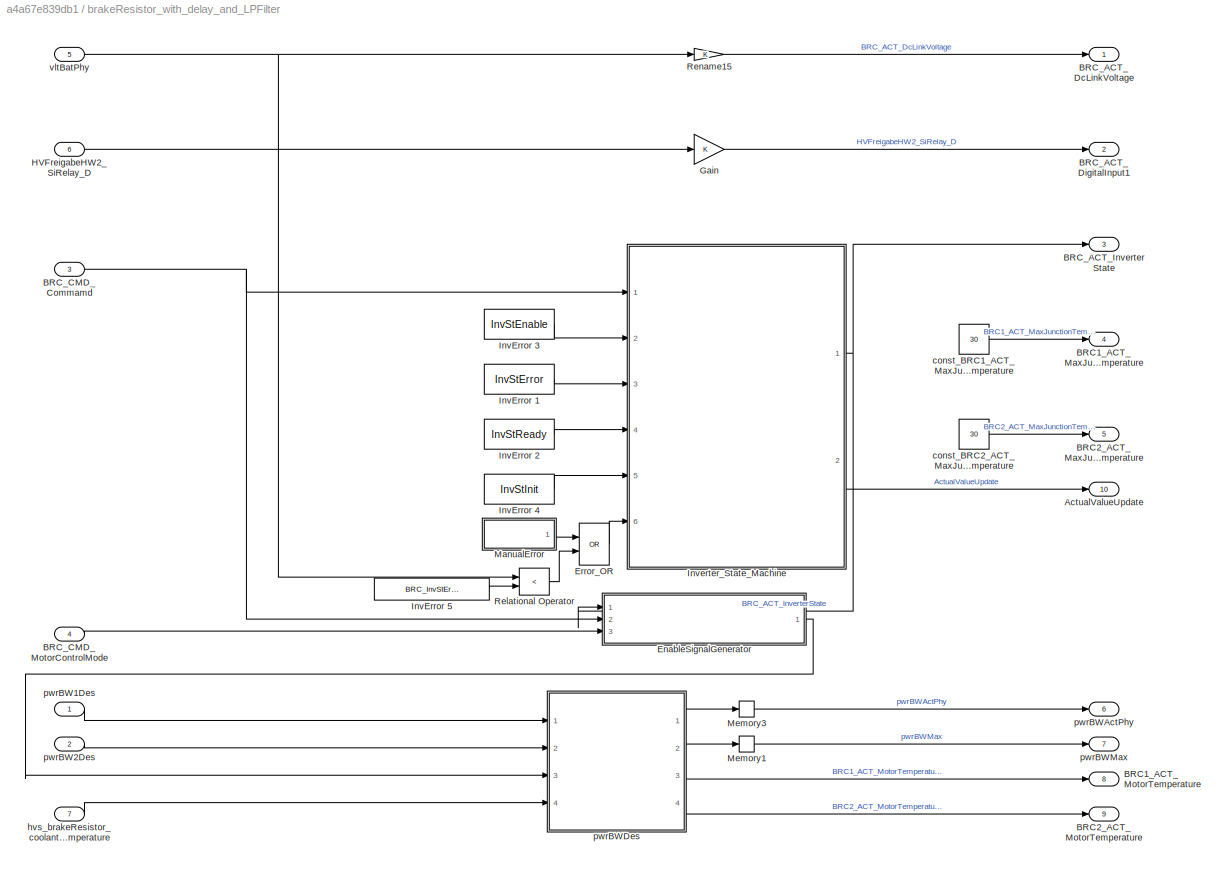
BLOCK [SubSystem] brakeResistor_with_delay_and_LPFilter
  Ports = [7, 10]
  RequestExecContextInheritance = off
  Variant = off
BLOCK [Outport] brakeResistor_with_delay_and_LPFilter/ BRC_ACT_DigitalInput1
  IconDisplay = Port number
  Port = 2
BLOCK [Outport] brakeResistor_with_delay_and_LPFilter/ActualValueUpdate
  IconDisplay = Port number
  Port = 10
BLOCK [Outport] brakeResistor_with_delay_and_LPFilter/BRC1_ACT_MaxJunctionTemperature
  IconDisplay = Port number
  Port = 4
BLOCK [Outport] brakeResistor_with_delay_and_LPFilter/BRC1_ACT_MotorTemperature
  IconDisplay = Port number
  Port = 8
BLOCK [Outport] brakeResistor_with_delay_and_LPFilter/BRC2_ACT_MaxJunctionTemperature
  IconDisplay = Port number
  Port = 5
BLOCK [Outport] brakeResistor_with_delay_and_LPFilter/BRC2_ACT_MotorTemperature
  IconDisplay = Port number
  Port = 9
BLOCK [Outport] brakeResistor_with_delay_and_LPFilter/BRC_ACT_DcLinkVoltage
  IconDisplay = Port number
BLOCK [Outport] brakeResistor_with_delay_and_LPFilter/BRC_ACT_InverterState
  IconDisplay = Port number
  Port = 3
BLOCK [Inport] brakeResistor_with_delay_and_LPFilter/BRC_CMD_Commamd
  IconDisplay = Port number
  Port = 3
BLOCK [Inport] brakeResistor_with_delay_and_LPFilter/BRC_CMD_MotorControlMode
  IconDisplay = Port number
  Port = 4
BLOCK [SubSystem] brakeResistor_with_delay_and_LPFilter/EnableSignalGenerator
  Ports = [3, 1]
  RequestExecContextInheritance = off
  TreatAsAtomicUnit = on
  Variant = off
BLOCK [Inport] brakeResistor_with_delay_and_LPFilter/EnableSignalGenerator/BRC_ACT_InverterState
  IconDisplay = Port number
BLOCK [Inport] brakeResistor_with_delay_and_LPFilter/EnableSignalGenerator/Command
  IconDisplay = Port number
  Port = 2
BLOCK [SubSystem] brakeResistor_with_delay_and_LPFilter/EnableSignalGenerator/Compare To Constant
  Ports = [1, 1]
  RequestExecContextInheritance = off
  Variant = off
BLOCK [RelationalOperator] brakeResistor_with_delay_and_LPFilter/EnableSignalGenerator/Compare To Constant/Compare
  Operator = ==
  OutDataTypeStr = boolean
  Ports = [2, 1]
BLOCK [Constant] brakeResistor_with_delay_and_LPFilter/EnableSignalGenerator/Compare To Constant/Constant
  DisableCoverage = on
  OutDataTypeStr = Inherit: Inherit via back propagation
  Value = const
BLOCK [Inport] brakeResistor_with_delay_and_LPFilter/EnableSignalGenerator/Compare To Constant/u
  IconDisplay = Port number
BLOCK [Outport] brakeResistor_with_delay_and_LPFilter/EnableSignalGenerator/Compare To Constant/y
  IconDisplay = Port number
BLOCK [Outport] brakeResistor_with_delay_and_LPFilter/EnableSignalGenerator/Enable
  IconDisplay = Port number
BLOCK [Logic] brakeResistor_with_delay_and_LPFilter/EnableSignalGenerator/Logical Operator
  AllPortsSameDT = off
  Inputs = 3
  OutDataTypeStr = boolean
  Ports = [3, 1]
BLOCK [Inport] brakeResistor_with_delay_and_LPFilter/EnableSignalGenerator/MotorControlMode
  IconDisplay = Port number
  Port = 3
BLOCK [SubSystem] brakeResistor_with_delay_and_LPFilter/EnableSignalGenerator/PropagateSignalOnlyWhenCommand
  Ports = [1, 1]
  RequestExecContextInheritance = off
  Variant = off
BLOCK [RelationalOperator] brakeResistor_with_delay_and_LPFilter/EnableSignalGenerator/PropagateSignalOnlyWhenCommand/Compare
  Operator = ==
  OutDataTypeStr = boolean
  Ports = [2, 1]
BLOCK [Constant] brakeResistor_with_delay_and_LPFilter/EnableSignalGenerator/PropagateSignalOnlyWhenCommand/Constant
  DisableCoverage = on
  OutDataTypeStr = Inherit: Inherit via back propagation
  Value = const
BLOCK [Inport] brakeResistor_with_delay_and_LPFilter/EnableSignalGenerator/PropagateSignalOnlyWhenCommand/u
  IconDisplay = Port number
BLOCK [Outport] brakeResistor_with_delay_and_LPFilter/EnableSignalGenerator/PropagateSignalOnlyWhenCommand/y
  IconDisplay = Port number
BLOCK [SubSystem] brakeResistor_with_delay_and_LPFilter/EnableSignalGenerator/PropagateSignalOnlyWhenTorqueControl
  Ports = [1, 1]
  RequestExecContextInheritance = off
  Variant = off
BLOCK [RelationalOperator] brakeResistor_with_delay_and_LPFilter/EnableSignalGenerator/PropagateSignalOnlyWhenTorqueControl/Compare
  Operator = ==
  OutDataTypeStr = boolean
  Ports = [2, 1]
BLOCK [Constant] brakeResistor_with_delay_and_LPFilter/EnableSignalGenerator/PropagateSignalOnlyWhenTorqueControl/Constant
  DisableCoverage = on
  OutDataTypeStr = Inherit: Inherit via back propagation
  Value = const
BLOCK [Inport] brakeResistor_with_delay_and_LPFilter/EnableSignalGenerator/PropagateSignalOnlyWhenTorqueControl/u
  IconDisplay = Port number
BLOCK [Outport] brakeResistor_with_delay_and_LPFilter/EnableSignalGenerator/PropagateSignalOnlyWhenTorqueControl/y
  IconDisplay = Port number
BLOCK [Logic] brakeResistor_with_delay_and_LPFilter/Error_OR
  AllPortsSameDT = off
  Operator = OR
  OutDataTypeStr = boolean
  Ports = [2, 1]
BLOCK [Gain] brakeResistor_with_delay_and_LPFilter/Gain
  OutDataTypeStr = Inherit: Inherit via internal rule
  ParamDataTypeStr = Inherit: Inherit via internal rule
  SaturateOnIntegerOverflow = off
BLOCK [Inport] brakeResistor_with_delay_and_LPFilter/HVFreigabeHW2_SiRelay_D
  IconDisplay = Port number
  Port = 6
BLOCK [Constant] brakeResistor_with_delay_and_LPFilter/InvError 1
  Value = InvStError
BLOCK [Constant] brakeResistor_with_delay_and_LPFilter/InvError 2
  Value = InvStReady
BLOCK [Constant] brakeResistor_with_delay_and_LPFilter/InvError 3
  Value = InvStEnable
BLOCK [Constant] brakeResistor_with_delay_and_LPFilter/InvError 4
  Value = InvStInit
BLOCK [Constant] brakeResistor_with_delay_and_LPFilter/InvError 5
  Value = BRC_InvStError
BLOCK [SubSystem] brakeResistor_with_delay_and_LPFilter/Inverter_State_Machine
  ErrorFcn = Stateflow.Translate.translate
  PermitHierarchicalResolution = ExplicitOnly
  Ports = [6, 2]
  RequestExecContextInheritance = off
  SFBlockType = Chart
  TreatAsAtomicUnit = on
  Variant = off
BLOCK [Demux] brakeResistor_with_delay_and_LPFilter/Inverter_State_Machine/ Demux 
  Outputs = 1
  Ports = [1, 1]
BLOCK [S-Function] brakeResistor_with_delay_and_LPFilter/Inverter_State_Machine/ SFunction 
  EnableBusSupport = off
  FunctionName = sf_sfun
  PortCounts = [6 3]
  Ports = [6, 3]
  SFunctionDeploymentMode = off
  Tag = Stateflow S-Function Energy_converter_Electrical_to_Thermal 1
BLOCK [Terminator] brakeResistor_with_delay_and_LPFilter/Inverter_State_Machine/ Terminator 
BLOCK [Outport] brakeResistor_with_delay_and_LPFilter/Inverter_State_Machine/ActualValuesUpdate
  IconDisplay = Port number
  Port = 2
BLOCK [Outport] brakeResistor_with_delay_and_LPFilter/Inverter_State_Machine/BRC_ACT_InverterState
  IconDisplay = Port number
BLOCK [Inport] brakeResistor_with_delay_and_LPFilter/Inverter_State_Machine/BRC_CMD_Command
  IconDisplay = Port number
BLOCK [Inport] brakeResistor_with_delay_and_LPFilter/Inverter_State_Machine/Error
  IconDisplay = Port number
  Port = 6
BLOCK [Inport] brakeResistor_with_delay_and_LPFilter/Inverter_State_Machine/InvStEnable
  IconDisplay = Port number
  Port = 2
BLOCK [Inport] brakeResistor_with_delay_and_LPFilter/Inverter_State_Machine/InvStError
  IconDisplay = Port number
  Port = 3
BLOCK [Inport] brakeResistor_with_delay_and_LPFilter/Inverter_State_Machine/InvStInit
  IconDisplay = Port number
  Port = 5
BLOCK [Inport] brakeResistor_with_delay_and_LPFilter/Inverter_State_Machine/InvStReady
  IconDisplay = Port number
  Port = 4
BLOCK [SubSystem] brakeResistor_with_delay_and_LPFilter/ManualError
  Ports = [0, 1]
  RequestExecContextInheritance = off
  TreatAsAtomicUnit = on
  Variant = off
BLOCK [Outport] brakeResistor_with_delay_and_LPFilter/ManualError/Error
  IconDisplay = Port number
BLOCK [ManualSwitch] brakeResistor_with_delay_and_LPFilter/ManualError/ErrorSwitch
BLOCK [Constant] brakeResistor_with_delay_and_LPFilter/ManualError/InvError
BLOCK [Constant] brakeResistor_with_delay_and_LPFilter/ManualError/NoError
  Value = 0
BLOCK [Memory] brakeResistor_with_delay_and_LPFilter/Memory1
BLOCK [Memory] brakeResistor_with_delay_and_LPFilter/Memory3
BLOCK [RelationalOperator] brakeResistor_with_delay_and_LPFilter/Relational Operator
  InputSameDT = off
  Operator = <
  OutDataTypeStr = boolean
  Ports = [2, 1]
BLOCK [Gain] brakeResistor_with_delay_and_LPFilter/Rename15
  OutDataTypeStr = Inherit: Inherit via internal rule
  ParamDataTypeStr = Inherit: Inherit via internal rule
  SaturateOnIntegerOverflow = off
BLOCK [Constant] brakeResistor_with_delay_and_LPFilter/const_BRC1_ACT_MaxJunctionTemperature
  Value = 30
BLOCK [Constant] brakeResistor_with_delay_and_LPFilter/const_BRC2_ACT_MaxJunctionTemperature
  Value = 30
BLOCK [Inport] brakeResistor_with_delay_and_LPFilter/hvs_brakeResistor_coolant_temperature
  IconDisplay = Port number
  Port = 7
BLOCK [Inport] brakeResistor_with_delay_and_LPFilter/pwrBW1Des
  IconDisplay = Port number
BLOCK [Inport] brakeResistor_with_delay_and_LPFilter/pwrBW2Des
  IconDisplay = Port number
  Port = 2
BLOCK [Outport] brakeResistor_with_delay_and_LPFilter/pwrBWActPhy
  IconDisplay = Port number
  Port = 6
BLOCK [SubSystem] brakeResistor_with_delay_and_LPFilter/pwrBWDes 
  Ports = [4, 4]
  RequestExecContextInheritance = off
  Variant = off
BLOCK [BusCreator] brakeResistor_with_delay_and_LPFilter/pwrBWDes /Bus Creator
  DisplayOption = bar
  InheritFromInputs = on
  Inputs = 2
  Ports = [2, 1]
BLOCK [BusCreator] brakeResistor_with_delay_and_LPFilter/pwrBWDes /Bus Creator1
  DisplayOption = bar
  InheritFromInputs = on
  Inputs = 2
  Ports = [2, 1]
BLOCK [Reference] brakeResistor_with_delay_and_LPFilter/pwrBWDes /Compare To Constant  REF=simulink/Logic and Bit
Operations/Compare
To Constant
  Ports = [1, 1]
  SourceBlock = simulink/Logic and Bit\nOperations/Compare\nTo Constant
  SourceType = Compare To Constant
BLOCK [Inport] brakeResistor_with_delay_and_LPFilter/pwrBWDes /Enable
  IconDisplay = Port number
  Port = 3
BLOCK [Logic] brakeResistor_with_delay_and_LPFilter/pwrBWDes /Logical Operator
  AllPortsSameDT = off
  OutDataTypeStr = boolean
  Ports = [2, 1]
BLOCK [Constant] brakeResistor_with_delay_and_LPFilter/pwrBWDes /NumberOfBreakResistors
  Value = NumBrkResistors
BLOCK [Inport] brakeResistor_with_delay_and_LPFilter/pwrBWDes /hvs_brakeResistor_coolant_temperature
  IconDisplay = Port number
  Port = 4
BLOCK [Inport] brakeResistor_with_delay_and_LPFilter/pwrBWDes /pwrBW1Des
  IconDisplay = Port number
BLOCK [SubSystem] brakeResistor_with_delay_and_LPFilter/pwrBWDes /pwrBW1Des 
  Ports = [3, 3]
  RequestExecContextInheritance = off
  Variant = off
BLOCK [Lookup_n-D] brakeResistor_with_delay_and_LPFilter/pwrBWDes /pwrBW1Des /Constant Power
  BreakpointsForDimension1 = Brc_Coolent_Inlet_Temp
  ExtrapMethod = Clip
  NumberOfTableDimensions = 1
  Ports = [1, 1]
  RndMeth = Simplest
  Table = Brc_Powerderating
  UseLastTableValue = on
BLOCK [Delay] brakeResistor_with_delay_and_LPFilter/pwrBWDes /pwrBW1Des /Delay1
  DelayLength = 60
  InputPortMap = u0
  Ports = [1, 1]
BLOCK [DiscreteTransferFcn] brakeResistor_with_delay_and_LPFilter/pwrBWDes /pwrBW1Des /Discrete Transfer Fcn1
  Denominator = [0.101 -0.099]
  InputPortMap = u0
  Numerator = [0.001 0.001]
  Ports = [1, 1]
BLOCK [Inport] brakeResistor_with_delay_and_LPFilter/pwrBWDes /pwrBW1Des /Enable
  IconDisplay = Port number
  Port = 2
BLOCK [MinMax] brakeResistor_with_delay_and_LPFilter/pwrBWDes /pwrBW1Des /MinMax
  InputSameDT = off
  Inputs = 2
  Ports = [2, 1]
  SaturateOnIntegerOverflow = off
BLOCK [Switch] brakeResistor_with_delay_and_LPFilter/pwrBWDes /pwrBW1Des /Switch
  InputSameDT = off
  SaturateOnIntegerOverflow = off
  Threshold = 0.5
BLOCK [Switch] brakeResistor_with_delay_and_LPFilter/pwrBWDes /pwrBW1Des /Switch1
  InputSameDT = off
  SaturateOnIntegerOverflow = off
  Threshold = 0.5
BLOCK [Constant] brakeResistor_with_delay_and_LPFilter/pwrBWDes /pwrBW1Des /ZeroPower
  Value = 0
BLOCK [Constant] brakeResistor_with_delay_and_LPFilter/pwrBWDes /pwrBW1Des /ZeroPower1
  Value = 0
BLOCK [Inport] brakeResistor_with_delay_and_LPFilter/pwrBWDes /pwrBW1Des /hvs_brakeResistor_coolant_temperature
  IconDisplay = Port number
  Port = 3
BLOCK [Gain] brakeResistor_with_delay_and_LPFilter/pwrBWDes /pwrBW1Des /kW_to_W
  Gain = 1000
  OutDataTypeStr = Inherit: Inherit via internal rule
  ParamDataTypeStr = Inherit: Inherit via internal rule
  SaturateOnIntegerOverflow = off
BLOCK [Outport] brakeResistor_with_delay_and_LPFilter/pwrBWDes /pwrBW1Des /pwrBW1ActPhy
  IconDisplay = Port number
BLOCK [Inport] brakeResistor_with_delay_and_LPFilter/pwrBWDes /pwrBW1Des /pwrBW1Des
  IconDisplay = Port number
BLOCK [Outport] brakeResistor_with_delay_and_LPFilter/pwrBWDes /pwrBW1Des /pwrBW1Max
  IconDisplay = Port number
  Port = 2
BLOCK [Outport] brakeResistor_with_delay_and_LPFilter/pwrBWDes /pwrBW1Des /tempBW1Act
  IconDisplay = Port number
  Port = 3
BLOCK [Inport] brakeResistor_with_delay_and_LPFilter/pwrBWDes /pwrBW2Des
  IconDisplay = Port number
  Port = 2
BLOCK [SubSystem] brakeResistor_with_delay_and_LPFilter/pwrBWDes /pwrBW2Des 
  Ports = [3, 3]
  RequestExecContextInheritance = off
  Variant = off
BLOCK [Lookup_n-D] brakeResistor_with_delay_and_LPFilter/pwrBWDes /pwrBW2Des /Constant Power
  BreakpointsForDimension1 = Brc_Coolent_Inlet_Temp
  ExtrapMethod = Clip
  NumberOfTableDimensions = 1
  Ports = [1, 1]
  RndMeth = Simplest
  Table = Brc_Powerderating
  UseLastTableValue = on
BLOCK [Delay] brakeResistor_with_delay_and_LPFilter/pwrBWDes /pwrBW2Des /Delay1
  DelayLength = 60
  InputPortMap = u0
  Ports = [1, 1]
BLOCK [DiscreteTransferFcn] brakeResistor_with_delay_and_LPFilter/pwrBWDes /pwrBW2Des /Discrete Transfer Fcn1
  Denominator = [0.101 -0.099]
  InputPortMap = u0
  Numerator = [0.001 0.001]
  Ports = [1, 1]
BLOCK [Inport] brakeResistor_with_delay_and_LPFilter/pwrBWDes /pwrBW2Des /Enable
  IconDisplay = Port number
BLOCK [MinMax] brakeResistor_with_delay_and_LPFilter/pwrBWDes /pwrBW2Des /MinMax
  InputSameDT = off
  Inputs = 2
  Ports = [2, 1]
  SaturateOnIntegerOverflow = off
BLOCK [Switch] brakeResistor_with_delay_and_LPFilter/pwrBWDes /pwrBW2Des /Switch
  InputSameDT = off
  SaturateOnIntegerOverflow = off
  Threshold = 0.5
BLOCK [Switch] brakeResistor_with_delay_and_LPFilter/pwrBWDes /pwrBW2Des /Switch1
  InputSameDT = off
  SaturateOnIntegerOverflow = off
  Threshold = 0.5
BLOCK [Constant] brakeResistor_with_delay_and_LPFilter/pwrBWDes /pwrBW2Des /ZeroPower
  Value = 0
BLOCK [Constant] brakeResistor_with_delay_and_LPFilter/pwrBWDes /pwrBW2Des /ZeroPower1
  Value = 0
BLOCK [Inport] brakeResistor_with_delay_and_LPFilter/pwrBWDes /pwrBW2Des /hvs_brakeResistor_coolant_temperature
  IconDisplay = Port number
  Port = 3
BLOCK [Gain] brakeResistor_with_delay_and_LPFilter/pwrBWDes /pwrBW2Des /kW_toW
  Gain = 1000
  OutDataTypeStr = Inherit: Inherit via internal rule
  ParamDataTypeStr = Inherit: Inherit via internal rule
  SaturateOnIntegerOverflow = off
BLOCK [Outport] brakeResistor_with_delay_and_LPFilter/pwrBWDes /pwrBW2Des /pwrBW2ActPhy
  IconDisplay = Port number
BLOCK [Inport] brakeResistor_with_delay_and_LPFilter/pwrBWDes /pwrBW2Des /pwrBW2Des
  IconDisplay = Port number
  Port = 2
BLOCK [Outport] brakeResistor_with_delay_and_LPFilter/pwrBWDes /pwrBW2Des /pwrBW2Max
  IconDisplay = Port number
  Port = 2
BLOCK [Outport] brakeResistor_with_delay_and_LPFilter/pwrBWDes /pwrBW2Des /tempBW2Act
  IconDisplay = Port number
  Port = 3
BLOCK [Outport] brakeResistor_with_delay_and_LPFilter/pwrBWDes /pwrBWActPhy
  IconDisplay = Port number
BLOCK [Outport] brakeResistor_with_delay_and_LPFilter/pwrBWDes /pwrBWMax
  IconDisplay = Port number
  Port = 2
BLOCK [Outport] brakeResistor_with_delay_and_LPFilter/pwrBWDes /tempBW1Act
  IconDisplay = Port number
  Port = 3
BLOCK [Outport] brakeResistor_with_delay_and_LPFilter/pwrBWDes /tempBW2Act
  IconDisplay = Port number
  Port = 4
BLOCK [Outport] brakeResistor_with_delay_and_LPFilter/pwrBWMax
  IconDisplay = Port number
  Port = 7
BLOCK [Inport] brakeResistor_with_delay_and_LPFilter/vltBatPhy
  IconDisplay = Port number
  Port = 5
NET Brake Chopper RX/Add:1 -> Brake Chopper RX/Divide:1, Brake Chopper RX/W_to_kW:1
LINE Brake Chopper RX/Avoid_Div_by_zero/Constant:1 -> Brake Chopper RX/Avoid_Div_by_zero/Sum:1
LINE Brake Chopper RX/Avoid_Div_by_zero/Divide:1 -> Brake Chopper RX/Avoid_Div_by_zero/1//U:1
LINE Brake Chopper RX/Avoid_Div_by_zero/Math Function:1 -> Brake Chopper RX/Avoid_Div_by_zero/Divide:1
NET Brake Chopper RX/Avoid_Div_by_zero/Sum:1 -> Brake Chopper RX/Avoid_Div_by_zero/Divide:2, Brake Chopper RX/Avoid_Div_by_zero/Math Function:1
LINE Brake Chopper RX/Avoid_Div_by_zero/U:1 -> Brake Chopper RX/Avoid_Div_by_zero/Sum:2
LINE Brake Chopper RX/Avoid_Div_by_zero:1 -> Brake Chopper RX/Divide:2
LINE Brake Chopper RX/BRC_CMD_ClearErrors:1 -> Brake Chopper RX/Brake Chopper RX:1
LINE Brake Chopper RX/BRC_CMD_ControlMode:1 -> Brake Chopper RX/Brake Chopper RX:2
LINE Brake Chopper RX/BRC_CMD_PowerCh1:1 -> Brake Chopper RX/Brake Chopper RX:3
LINE Brake Chopper RX/BRC_CMD_PowerCh2:1 -> Brake Chopper RX/Brake Chopper RX:4
LINE Brake Chopper RX/Brake Chopper RX/BRC_CMD_ClearErrors:1 -> Brake Chopper RX/Brake Chopper RX/Out_BRC_CMD_Command:1
NET Brake Chopper RX/Brake Chopper RX/BRC_CMD_ControlMode:1 -> Brake Chopper RX/Brake Chopper RX/Out_BRC_CMD_Command:2, Brake Chopper RX/Brake Chopper RX/Out_BRC_CMD_MotorControlMode:1
LINE Brake Chopper RX/Brake Chopper RX/BRC_CMD_PowerCh1:1 -> Brake Chopper RX/Brake Chopper RX/percent_to_kW:1
LINE Brake Chopper RX/Brake Chopper RX/BRC_CMD_PowerCh2:1 -> Brake Chopper RX/Brake Chopper RX/percent_to_kW1:1
LINE Brake Chopper RX/Brake Chopper RX/Constant1:1 -> Brake Chopper RX/Brake Chopper RX/percent_to_kW:2
LINE Brake Chopper RX/Brake Chopper RX/Constant2:1 -> Brake Chopper RX/Brake Chopper RX/percent_to_kW1:2
LINE Brake Chopper RX/Brake Chopper RX/Gain1:1 -> Brake Chopper RX/Brake Chopper RX/Out_BRC_CMD_PowerCh2:1
LINE Brake Chopper RX/Brake Chopper RX/Gain40:1 -> Brake Chopper RX/Brake Chopper RX/Out_BRC_CMD_PowerCh1:1
LINE Brake Chopper RX/Brake Chopper RX/Out_BRC_CMD_Command/BRC_CMD_ClearErrors:1 -> Brake Chopper RX/Brake Chopper RX/Out_BRC_CMD_Command/Compare To Constant1:1
LINE Brake Chopper RX/Brake Chopper RX/Out_BRC_CMD_Command/BRC_CMD_ControlMode:1 -> Brake Chopper RX/Brake Chopper RX/Out_BRC_CMD_Command/Compare To Constant:1
LINE Brake Chopper RX/Brake Chopper RX/Out_BRC_CMD_Command/Compare To Constant1:1 -> Brake Chopper RX/Brake Chopper RX/Out_BRC_CMD_Command/Switch:2
LINE Brake Chopper RX/Brake Chopper RX/Out_BRC_CMD_Command/Compare To Constant:1 -> Brake Chopper RX/Brake Chopper RX/Out_BRC_CMD_Command/Switch1:2
LINE Brake Chopper RX/Brake Chopper RX/Out_BRC_CMD_Command/Constant3:1 -> Brake Chopper RX/Brake Chopper RX/Out_BRC_CMD_Command/Switch1:1
LINE Brake Chopper RX/Brake Chopper RX/Out_BRC_CMD_Command/Constant4:1 -> Brake Chopper RX/Brake Chopper RX/Out_BRC_CMD_Command/Switch1:3
LINE Brake Chopper RX/Brake Chopper RX/Out_BRC_CMD_Command/Constant:1 -> Brake Chopper RX/Brake Chopper RX/Out_BRC_CMD_Command/Switch:1
LINE Brake Chopper RX/Brake Chopper RX/Out_BRC_CMD_Command/Switch1:1 -> Brake Chopper RX/Brake Chopper RX/Out_BRC_CMD_Command/Switch:3
LINE Brake Chopper RX/Brake Chopper RX/Out_BRC_CMD_Command/Switch:1 -> Brake Chopper RX/Brake Chopper RX/Out_BRC_CMD_Command/BRC_CMD_Command:1
LINE Brake Chopper RX/Brake Chopper RX/Out_BRC_CMD_Command:1 -> Brake Chopper RX/Brake Chopper RX/BRC_CMD_Command:1
LINE Brake Chopper RX/Brake Chopper RX/percent_to_kW/Constant:1 -> Brake Chopper RX/Brake Chopper RX/percent_to_kW/Divide:2
LINE Brake Chopper RX/Brake Chopper RX/percent_to_kW/Divide:1 -> Brake Chopper RX/Brake Chopper RX/percent_to_kW/Power_kW:1
LINE Brake Chopper RX/Brake Chopper RX/percent_to_kW/Percentage_Power:1 -> Brake Chopper RX/Brake Chopper RX/percent_to_kW/Product:1
LINE Brake Chopper RX/Brake Chopper RX/percent_to_kW/Product:1 -> Brake Chopper RX/Brake Chopper RX/percent_to_kW/Divide:1
LINE Brake Chopper RX/Brake Chopper RX/percent_to_kW/Reference_Power:1 -> Brake Chopper RX/Brake Chopper RX/percent_to_kW/Product:2
LINE Brake Chopper RX/Brake Chopper RX/percent_to_kW1/Constant:1 -> Brake Chopper RX/Brake Chopper RX/percent_to_kW1/Divide:2
LINE Brake Chopper RX/Brake Chopper RX/percent_to_kW1/Divide:1 -> Brake Chopper RX/Brake Chopper RX/percent_to_kW1/Power_kW:1
LINE Brake Chopper RX/Brake Chopper RX/percent_to_kW1/Percentage_Power:1 -> Brake Chopper RX/Brake Chopper RX/percent_to_kW1/Product:1
LINE Brake Chopper RX/Brake Chopper RX/percent_to_kW1/Product:1 -> Brake Chopper RX/Brake Chopper RX/percent_to_kW1/Divide:1
LINE Brake Chopper RX/Brake Chopper RX/percent_to_kW1/Reference_Power:1 -> Brake Chopper RX/Brake Chopper RX/percent_to_kW1/Product:2
LINE Brake Chopper RX/Brake Chopper RX/percent_to_kW1:1 -> Brake Chopper RX/Brake Chopper RX/Gain1:1
LINE Brake Chopper RX/Brake Chopper RX/percent_to_kW:1 -> Brake Chopper RX/Brake Chopper RX/Gain40:1
LINE Brake Chopper RX/Brake Chopper RX:1 -> Brake Chopper RX/brakeResistor:1
LINE Brake Chopper RX/Brake Chopper RX:2 -> Brake Chopper RX/brakeResistor:2
LINE Brake Chopper RX/Brake Chopper RX:3 -> Brake Chopper RX/brakeResistor:3
LINE Brake Chopper RX/Brake Chopper RX:4 -> Brake Chopper RX/brakeResistor:4
LINE Brake Chopper RX/Brake Chopper TX/Constant2:1 -> Brake Chopper RX/Brake Chopper TX/kW_to_%1:2
LINE Brake Chopper RX/Brake Chopper TX/Constant30:1 -> Brake Chopper RX/Brake Chopper TX/hvs_BRC_ACT_MaxAvailablePowerCh1_VAL:1
LINE Brake Chopper RX/Brake Chopper TX/Constant3:1 -> Brake Chopper RX/Brake Chopper TX/kW_to_%:2
LINE Brake Chopper RX/Brake Chopper TX/Constant5:1 -> Brake Chopper RX/Brake Chopper TX/kW_to_%2:2
LINE Brake Chopper RX/Brake Chopper TX/Constant6:1 -> Brake Chopper RX/Brake Chopper TX/kW_to_%3:2
LINE Brake Chopper RX/Brake Chopper TX/Gain1:1 -> Brake Chopper RX/Brake Chopper TX/kW_to_%1:1
LINE Brake Chopper RX/Brake Chopper TX/Gain2:1 -> Brake Chopper RX/Brake Chopper TX/kW_to_%2:1
LINE Brake Chopper RX/Brake Chopper TX/Gain3:1 -> Brake Chopper RX/Brake Chopper TX/kW_to_%3:1
LINE Brake Chopper RX/Brake Chopper TX/Gain40:1 -> Brake Chopper RX/Brake Chopper TX/kW_to_%:1
LINE Brake Chopper RX/Brake Chopper TX/IN_BRC_ACT_DigitalInput1:1 -> Brake Chopper RX/Brake Chopper TX/hvs_BRC_ACT_DigitalInput1:1
LINE Brake Chopper RX/Brake Chopper TX/IN_BRC_ACT_InverterState:1 -> Brake Chopper RX/Brake Chopper TX/hvs_BRC_ACT_InverterState:1
LINE Brake Chopper RX/Brake Chopper TX/IN_BRC_ACT_JunctionTemperatureCh1:1 -> Brake Chopper RX/Brake Chopper TX/hvs_BRC_ACT_JunctionTempCh1:1
LINE Brake Chopper RX/Brake Chopper TX/IN_BRC_ACT_JunctionTemperatureCh2:1 -> Brake Chopper RX/Brake Chopper TX/hvs_BRC_ACT_JunctionTempCh2:1
LINE Brake Chopper RX/Brake Chopper TX/IN_BRC_ACT_MotorTemperatureCh1:1 -> Brake Chopper RX/Brake Chopper TX/hvs_BRC_ACT_ExtTemperatureCh1:1
LINE Brake Chopper RX/Brake Chopper TX/IN_BRC_ACT_MotorTemperatureCh2:1 -> Brake Chopper RX/Brake Chopper TX/hvs_BRC_ACT_ExtTemperatureCh2:1
LINE Brake Chopper RX/Brake Chopper TX/IN_BRC_ACT_PowerCh1:1 -> Brake Chopper RX/Brake Chopper TX/Gain2:1
LINE Brake Chopper RX/Brake Chopper TX/IN_BRC_ACT_PowerCh2:1 -> Brake Chopper RX/Brake Chopper TX/Gain3:1
LINE Brake Chopper RX/Brake Chopper TX/IN_BRC_MAX_PowerCh1:1 -> Brake Chopper RX/Brake Chopper TX/Gain40:1
LINE Brake Chopper RX/Brake Chopper TX/IN_BRC_MAX_PowerCh2:1 -> Brake Chopper RX/Brake Chopper TX/Gain1:1
LINE Brake Chopper RX/Brake Chopper TX/IN_EMD_ACT_DcLinkVoltage:1 -> Brake Chopper RX/Brake Chopper TX/hvs_BRC_ACT_DcLinkVoltage:1
LINE Brake Chopper RX/Brake Chopper TX/kW_to_%/Constant:1 -> Brake Chopper RX/Brake Chopper TX/kW_to_%/Product1:2
LINE Brake Chopper RX/Brake Chopper TX/kW_to_%/Divide1:1 -> Brake Chopper RX/Brake Chopper TX/kW_to_%/Product1:1
LINE Brake Chopper RX/Brake Chopper TX/kW_to_%/Product1:1 -> Brake Chopper RX/Brake Chopper TX/kW_to_%/Power_Percentage:1
LINE Brake Chopper RX/Brake Chopper TX/kW_to_%/Reference_Power:1 -> Brake Chopper RX/Brake Chopper TX/kW_to_%/Divide1:2
LINE Brake Chopper RX/Brake Chopper TX/kW_to_%/kW_Power:1 -> Brake Chopper RX/Brake Chopper TX/kW_to_%/Divide1:1
LINE Brake Chopper RX/Brake Chopper TX/kW_to_%1/Constant:1 -> Brake Chopper RX/Brake Chopper TX/kW_to_%1/Product1:2
LINE Brake Chopper RX/Brake Chopper TX/kW_to_%1/Divide1:1 -> Brake Chopper RX/Brake Chopper TX/kW_to_%1/Product1:1
LINE Brake Chopper RX/Brake Chopper TX/kW_to_%1/Product1:1 -> Brake Chopper RX/Brake Chopper TX/kW_to_%1/Power_Percentage:1
LINE Brake Chopper RX/Brake Chopper TX/kW_to_%1/Reference_Power:1 -> Brake Chopper RX/Brake Chopper TX/kW_to_%1/Divide1:2
LINE Brake Chopper RX/Brake Chopper TX/kW_to_%1/kW_Power:1 -> Brake Chopper RX/Brake Chopper TX/kW_to_%1/Divide1:1
LINE Brake Chopper RX/Brake Chopper TX/kW_to_%1:1 -> Brake Chopper RX/Brake Chopper TX/hvs_BRC_ACT_MaxAvailablePowerCh2:1
LINE Brake Chopper RX/Brake Chopper TX/kW_to_%2/Constant:1 -> Brake Chopper RX/Brake Chopper TX/kW_to_%2/Product1:2
LINE Brake Chopper RX/Brake Chopper TX/kW_to_%2/Divide1:1 -> Brake Chopper RX/Brake Chopper TX/kW_to_%2/Product1:1
LINE Brake Chopper RX/Brake Chopper TX/kW_to_%2/Product1:1 -> Brake Chopper RX/Brake Chopper TX/kW_to_%2/Power_Percentage:1
LINE Brake Chopper RX/Brake Chopper TX/kW_to_%2/Reference_Power:1 -> Brake Chopper RX/Brake Chopper TX/kW_to_%2/Divide1:2
LINE Brake Chopper RX/Brake Chopper TX/kW_to_%2/kW_Power:1 -> Brake Chopper RX/Brake Chopper TX/kW_to_%2/Divide1:1
LINE Brake Chopper RX/Brake Chopper TX/kW_to_%2:1 -> Brake Chopper RX/Brake Chopper TX/hvs_BRC_ACT_PowerCh1:1
LINE Brake Chopper RX/Brake Chopper TX/kW_to_%3/Constant:1 -> Brake Chopper RX/Brake Chopper TX/kW_to_%3/Product1:2
LINE Brake Chopper RX/Brake Chopper TX/kW_to_%3/Divide1:1 -> Brake Chopper RX/Brake Chopper TX/kW_to_%3/Product1:1
LINE Brake Chopper RX/Brake Chopper TX/kW_to_%3/Product1:1 -> Brake Chopper RX/Brake Chopper TX/kW_to_%3/Power_Percentage:1
LINE Brake Chopper RX/Brake Chopper TX/kW_to_%3/Reference_Power:1 -> Brake Chopper RX/Brake Chopper TX/kW_to_%3/Divide1:2
LINE Brake Chopper RX/Brake Chopper TX/kW_to_%3/kW_Power:1 -> Brake Chopper RX/Brake Chopper TX/kW_to_%3/Divide1:1
LINE Brake Chopper RX/Brake Chopper TX/kW_to_%3:1 -> Brake Chopper RX/Brake Chopper TX/hvs_BRC_ACT_PowerCh2:1
LINE Brake Chopper RX/Brake Chopper TX/kW_to_%:1 -> Brake Chopper RX/Brake Chopper TX/hvs_BRC_ACT_MaxAvailablePowerCh1:1
LINE Brake Chopper RX/Brake Chopper TX:1 -> Brake Chopper RX/hvs_BRC_ACT_DigitalInput1:1
LINE Brake Chopper RX/Brake Chopper TX:10 -> Brake Chopper RX/hvs_BRC_ACT_ExtTemperatureCh2:1
LINE Brake Chopper RX/Brake Chopper TX:11 -> Brake Chopper RX/hvs_BRC_ACT_JunctionTempCh1:1
LINE Brake Chopper RX/Brake Chopper TX:12 -> Brake Chopper RX/hvs_BRC_ACT_JunctionTempCh2:1
LINE Brake Chopper RX/Brake Chopper TX:2 -> Brake Chopper RX/hvs_BRC_ACT_InverterState:1
LINE Brake Chopper RX/Brake Chopper TX:3 -> Brake Chopper RX/hvs_BRC_ACT_MaxAvailablePowerCh1:1
LINE Brake Chopper RX/Brake Chopper TX:4 -> Brake Chopper RX/hvs_BRC_ACT_MaxAvailablePowerCh1_VAL:1
LINE Brake Chopper RX/Brake Chopper TX:5 -> Brake Chopper RX/hvs_BRC_ACT_PowerCh1:1
LINE Brake Chopper RX/Brake Chopper TX:6 -> Brake Chopper RX/hvs_BRC_ACT_MaxAvailablePowerCh2:1
LINE Brake Chopper RX/Brake Chopper TX:7 -> Brake Chopper RX/hvs_BRC_ACT_PowerCh2:1
LINE Brake Chopper RX/Brake Chopper TX:8 -> Brake Chopper RX/hvs_BRC_ACT_DcLinkVoltage:1
LINE Brake Chopper RX/Brake Chopper TX:9 -> Brake Chopper RX/hvs_BRC_ACT_ExtTemperatureCh1:1
LINE Brake Chopper RX/Bus Creator2:1 -> Brake Chopper RX/Switch1:1
LINE Brake Chopper RX/Bus Selector1:1 -> Brake Chopper RX/Add:1
LINE Brake Chopper RX/Bus Selector1:2 -> Brake Chopper RX/Add:2
LINE Brake Chopper RX/Bus Selector1:3 -> Brake Chopper RX/Avoid_Div_by_zero:1
LINE Brake Chopper RX/Bus Selector3:1 -> Brake Chopper RX/Brake Chopper TX:1
LINE Brake Chopper RX/Bus Selector3:10 -> Brake Chopper RX/Brake Chopper TX:10
LINE Brake Chopper RX/Bus Selector3:11 -> Brake Chopper RX/Brake Chopper TX:11
LINE Brake Chopper RX/Bus Selector3:2 -> Brake Chopper RX/Brake Chopper TX:2
LINE Brake Chopper RX/Bus Selector3:3 -> Brake Chopper RX/Brake Chopper TX:3
LINE Brake Chopper RX/Bus Selector3:4 -> Brake Chopper RX/Brake Chopper TX:4
LINE Brake Chopper RX/Bus Selector3:5 -> Brake Chopper RX/Brake Chopper TX:5
LINE Brake Chopper RX/Bus Selector3:6 -> Brake Chopper RX/Brake Chopper TX:6
LINE Brake Chopper RX/Bus Selector3:7 -> Brake Chopper RX/Brake Chopper TX:7
LINE Brake Chopper RX/Bus Selector3:8 -> Brake Chopper RX/Brake Chopper TX:8
LINE Brake Chopper RX/Bus Selector3:9 -> Brake Chopper RX/Brake Chopper TX:9
LINE Brake Chopper RX/Divide:1 -> Brake Chopper RX/hvs_dcLink_BrakeResistor_current:1
LINE Brake Chopper RX/HVFreigabeHW2_SiRelay_D:1 -> Brake Chopper RX/brakeResistor:6
NET Brake Chopper RX/Switch1:1 -> Brake Chopper RX/Bus Selector1:1, Brake Chopper RX/Bus Selector3:1
LINE Brake Chopper RX/W_to_kW:1 -> Brake Chopper RX/hvs_brakeResistor_wasteHeat_power:1
LINE Brake Chopper RX/ZeroWhenNotReady/Bus Creator1:1 -> Brake Chopper RX/ZeroWhenNotReady/Memory3:1
LINE Brake Chopper RX/ZeroWhenNotReady/Bus Creator2:1 -> Brake Chopper RX/ZeroWhenNotReady/Memory1:1
LINE Brake Chopper RX/ZeroWhenNotReady/Bus Creator:1 -> Brake Chopper RX/ZeroWhenNotReady/brakeResB:1
LINE Brake Chopper RX/ZeroWhenNotReady/Memory1:1 -> Brake Chopper RX/ZeroWhenNotReady/Bus Creator:7
LINE Brake Chopper RX/ZeroWhenNotReady/Memory3:1 -> Brake Chopper RX/ZeroWhenNotReady/Bus Creator:6
LINE Brake Chopper RX/ZeroWhenNotReady/zero_BRC1_ACT_MaxJunctionTemperature:1 -> Brake Chopper RX/ZeroWhenNotReady/Bus Creator:4
LINE Brake Chopper RX/ZeroWhenNotReady/zero_BRC1_ACT_MotorTemperature:1 -> Brake Chopper RX/ZeroWhenNotReady/Bus Creator:8
LINE Brake Chopper RX/ZeroWhenNotReady/zero_BRC2_ACT_MaxJunctionTemperature:1 -> Brake Chopper RX/ZeroWhenNotReady/Bus Creator:5
LINE Brake Chopper RX/ZeroWhenNotReady/zero_BRC2_ACT_MotorTemperature:1 -> Brake Chopper RX/ZeroWhenNotReady/Bus Creator:9
LINE Brake Chopper RX/ZeroWhenNotReady/zero_BRC_ACT_DcLinkVoltage:1 -> Brake Chopper RX/ZeroWhenNotReady/Bus Creator:1
LINE Brake Chopper RX/ZeroWhenNotReady/zero_BRC_ACT_InverterState:1 -> Brake Chopper RX/ZeroWhenNotReady/Bus Creator:3
LINE Brake Chopper RX/ZeroWhenNotReady/zero_HV_FreigabeHW2_SiRelay_D:1 -> Brake Chopper RX/ZeroWhenNotReady/Bus Creator:2
LINE Brake Chopper RX/ZeroWhenNotReady/zero_pwrBW1ActPhy:1 -> Brake Chopper RX/ZeroWhenNotReady/Bus Creator1:1
LINE Brake Chopper RX/ZeroWhenNotReady/zero_pwrBW1Max:1 -> Brake Chopper RX/ZeroWhenNotReady/Bus Creator2:1
LINE Brake Chopper RX/ZeroWhenNotReady/zero_pwrBW2ActPhy:1 -> Brake Chopper RX/ZeroWhenNotReady/Bus Creator1:2
LINE Brake Chopper RX/ZeroWhenNotReady/zero_pwrBW2Max:1 -> Brake Chopper RX/ZeroWhenNotReady/Bus Creator2:2
LINE Brake Chopper RX/ZeroWhenNotReady:1 -> Brake Chopper RX/Switch1:3
LINE Brake Chopper RX/brakeResistor:1 -> Brake Chopper RX/Bus Creator2:1
LINE Brake Chopper RX/brakeResistor:10 -> Brake Chopper RX/Switch1:2
LINE Brake Chopper RX/brakeResistor:2 -> Brake Chopper RX/Bus Creator2:2
LINE Brake Chopper RX/brakeResistor:3 -> Brake Chopper RX/Bus Creator2:3
LINE Brake Chopper RX/brakeResistor:4 -> Brake Chopper RX/Bus Creator2:4
LINE Brake Chopper RX/brakeResistor:5 -> Brake Chopper RX/Bus Creator2:5
LINE Brake Chopper RX/brakeResistor:6 -> Brake Chopper RX/Bus Creator2:6
LINE Brake Chopper RX/brakeResistor:7 -> Brake Chopper RX/Bus Creator2:7
LINE Brake Chopper RX/brakeResistor:8 -> Brake Chopper RX/Bus Creator2:8
LINE Brake Chopper RX/brakeResistor:9 -> Brake Chopper RX/Bus Creator2:9
LINE Brake Chopper RX/hvs_brakeResistor_coolant_temperature:1 -> Brake Chopper RX/brakeResistor:7
LINE Brake Chopper RX/vltBatPhy:1 -> Brake Chopper RX/brakeResistor:5
NET brakeResistor/BRC_CMD_Commamd:1 -> brakeResistor/EnableSignalGenerator:2, brakeResistor/Inverter_State_Machine:1
LINE brakeResistor/BRC_CMD_MotorControlMode:1 -> brakeResistor/EnableSignalGenerator:3
LINE brakeResistor/EnableSignalGenerator/BRC_ACT_InverterState:1 -> brakeResistor/EnableSignalGenerator/Compare To Constant:1
LINE brakeResistor/EnableSignalGenerator/Command:1 -> brakeResistor/EnableSignalGenerator/PropagateSignalOnlyWhenCommand:1
LINE brakeResistor/EnableSignalGenerator/Compare To Constant:1 -> brakeResistor/EnableSignalGenerator/Logical Operator:1
LINE brakeResistor/EnableSignalGenerator/Logical Operator:1 -> brakeResistor/EnableSignalGenerator/Enable:1
LINE brakeResistor/EnableSignalGenerator/MotorControlMode:1 -> brakeResistor/EnableSignalGenerator/PropagateSignalOnlyWhenTorqueControl:1
LINE brakeResistor/EnableSignalGenerator/PropagateSignalOnlyWhenCommand:1 -> brakeResistor/EnableSignalGenerator/Logical Operator:2
LINE brakeResistor/EnableSignalGenerator/PropagateSignalOnlyWhenTorqueControl:1 -> brakeResistor/EnableSignalGenerator/Logical Operator:3
LINE brakeResistor/EnableSignalGenerator:1 -> brakeResistor/pwrBWDes :3
LINE brakeResistor/Error_OR:1 -> brakeResistor/Inverter_State_Machine:6
LINE brakeResistor/Gain:1 -> brakeResistor/ BRC_ACT_DigitalInput1:1
LINE brakeResistor/HVFreigabeHW2_SiRelay_D:1 -> brakeResistor/Gain:1
LINE brakeResistor/InvError 1:1 -> brakeResistor/Inverter_State_Machine:3
LINE brakeResistor/InvError 2:1 -> brakeResistor/Inverter_State_Machine:4
LINE brakeResistor/InvError 3:1 -> brakeResistor/Inverter_State_Machine:2
LINE brakeResistor/InvError 4:1 -> brakeResistor/Inverter_State_Machine:5
LINE brakeResistor/InvError 5:1 -> brakeResistor/Relational Operator:2
NET brakeResistor/Inverter_State_Machine:1 -> brakeResistor/BRC_ACT_InverterState:1, brakeResistor/EnableSignalGenerator:1
LINE brakeResistor/Inverter_State_Machine:2 -> brakeResistor/ActualValueUpdate:1
LINE brakeResistor/ManualError/ErrorSwitch:1 -> brakeResistor/ManualError/Error:1
LINE brakeResistor/ManualError/InvError:1 -> brakeResistor/ManualError/ErrorSwitch:2
LINE brakeResistor/ManualError/NoError:1 -> brakeResistor/ManualError/ErrorSwitch:1
LINE brakeResistor/ManualError:1 -> brakeResistor/Error_OR:1
LINE brakeResistor/Relational Operator:1 -> brakeResistor/Error_OR:2
LINE brakeResistor/Rename15:1 -> brakeResistor/BRC_ACT_DcLinkVoltage:1
LINE brakeResistor/const_BRC1_ACT_MaxJunctionTemperature:1 -> brakeResistor/BRC1_ACT_MaxJunctionTemperature:1
LINE brakeResistor/const_BRC2_ACT_MaxJunctionTemperature:1 -> brakeResistor/BRC2_ACT_MaxJunctionTemperature:1
LINE brakeResistor/hvs_brakeResistor_coolant_temperature:1 -> brakeResistor/pwrBWDes :4
LINE brakeResistor/pwrBW1Des:1 -> brakeResistor/pwrBWDes :1
LINE brakeResistor/pwrBW2Des:1 -> brakeResistor/pwrBWDes :2
LINE brakeResistor/pwrBWDes /Bus Creator1:1 -> brakeResistor/pwrBWDes /pwrBWMax:1
LINE brakeResistor/pwrBWDes /Bus Creator:1 -> brakeResistor/pwrBWDes /pwrBWActPhy:1
LINE brakeResistor/pwrBWDes /Compare To Constant:1 -> brakeResistor/pwrBWDes /Logical Operator:2
NET brakeResistor/pwrBWDes /Enable:1 -> brakeResistor/pwrBWDes /Logical Operator:1, brakeResistor/pwrBWDes /pwrBW1Des :2
LINE brakeResistor/pwrBWDes /Logical Operator:1 -> brakeResistor/pwrBWDes /pwrBW2Des :1
LINE brakeResistor/pwrBWDes /NumberOfBreakResistors:1 -> brakeResistor/pwrBWDes /Compare To Constant:1
NET brakeResistor/pwrBWDes /hvs_brakeResistor_coolant_temperature:1 -> brakeResistor/pwrBWDes /pwrBW1Des :3, brakeResistor/pwrBWDes /pwrBW2Des :3
LINE brakeResistor/pwrBWDes /pwrBW1Des /Constant Power:1 -> brakeResistor/pwrBWDes /pwrBW1Des /kW_to_W:1
LINE brakeResistor/pwrBWDes /pwrBW1Des /Delay1:1 -> brakeResistor/pwrBWDes /pwrBW1Des /Discrete Transfer Fcn1:1
LINE brakeResistor/pwrBWDes /pwrBW1Des /Discrete Transfer Fcn1:1 -> brakeResistor/pwrBWDes /pwrBW1Des /Terminator:1
LINE brakeResistor/pwrBWDes /pwrBW1Des /Enable:1 -> brakeResistor/pwrBWDes /pwrBW1Des /Switch:2
NET brakeResistor/pwrBWDes /pwrBW1Des /MinMax:1 -> brakeResistor/pwrBWDes /pwrBW1Des /Delay1:1, brakeResistor/pwrBWDes /pwrBW1Des /pwrBW1ActPhy:1
LINE brakeResistor/pwrBWDes /pwrBW1Des /Switch:1 -> brakeResistor/pwrBWDes /pwrBW1Des /MinMax:1
LINE brakeResistor/pwrBWDes /pwrBW1Des /ZeroPower:1 -> brakeResistor/pwrBWDes /pwrBW1Des /Switch:3
NET brakeResistor/pwrBWDes /pwrBW1Des /hvs_brakeResistor_coolant_temperature:1 -> brakeResistor/pwrBWDes /pwrBW1Des /Constant Power:1, brakeResistor/pwrBWDes /pwrBW1Des /tempBW1Act:1
NET brakeResistor/pwrBWDes /pwrBW1Des /kW_to_W:1 -> brakeResistor/pwrBWDes /pwrBW1Des /MinMax:2, brakeResistor/pwrBWDes /pwrBW1Des /pwrBW1Max:1
LINE brakeResistor/pwrBWDes /pwrBW1Des /pwrBW1Des:1 -> brakeResistor/pwrBWDes /pwrBW1Des /Switch:1
LINE brakeResistor/pwrBWDes /pwrBW1Des :1 -> brakeResistor/pwrBWDes /Bus Creator:1
LINE brakeResistor/pwrBWDes /pwrBW1Des :2 -> brakeResistor/pwrBWDes /Bus Creator1:1
LINE brakeResistor/pwrBWDes /pwrBW1Des :3 -> brakeResistor/pwrBWDes /tempBW1Act:1
LINE brakeResistor/pwrBWDes /pwrBW1Des:1 -> brakeResistor/pwrBWDes /pwrBW1Des :1
LINE brakeResistor/pwrBWDes /pwrBW2Des /Compare To Constant:1 -> brakeResistor/pwrBWDes /pwrBW2Des /Switch1:2
LINE brakeResistor/pwrBWDes /pwrBW2Des /Constant Power:1 -> brakeResistor/pwrBWDes /pwrBW2Des /kW_toW:1
LINE brakeResistor/pwrBWDes /pwrBW2Des /Delay1:1 -> brakeResistor/pwrBWDes /pwrBW2Des /Discrete Transfer Fcn1:1
LINE brakeResistor/pwrBWDes /pwrBW2Des /Discrete Transfer Fcn1:1 -> brakeResistor/pwrBWDes /pwrBW2Des /Terminator:1
LINE brakeResistor/pwrBWDes /pwrBW2Des /Enable:1 -> brakeResistor/pwrBWDes /pwrBW2Des /Switch:2
NET brakeResistor/pwrBWDes /pwrBW2Des /MinMax:1 -> brakeResistor/pwrBWDes /pwrBW2Des /Delay1:1, brakeResistor/pwrBWDes /pwrBW2Des /pwrBW2ActPhy:1
LINE brakeResistor/pwrBWDes /pwrBW2Des /NumberOfBreakResistors:1 -> brakeResistor/pwrBWDes /pwrBW2Des /Compare To Constant:1
LINE brakeResistor/pwrBWDes /pwrBW2Des /Switch1:1 -> brakeResistor/pwrBWDes /pwrBW2Des /pwrBW2Max:1
LINE brakeResistor/pwrBWDes /pwrBW2Des /Switch:1 -> brakeResistor/pwrBWDes /pwrBW2Des /MinMax:1
LINE brakeResistor/pwrBWDes /pwrBW2Des /ZeroPower1:1 -> brakeResistor/pwrBWDes /pwrBW2Des /Switch1:3
LINE brakeResistor/pwrBWDes /pwrBW2Des /ZeroPower:1 -> brakeResistor/pwrBWDes /pwrBW2Des /Switch:3
NET brakeResistor/pwrBWDes /pwrBW2Des /hvs_brakeResistor_coolant_temperature:1 -> brakeResistor/pwrBWDes /pwrBW2Des /Constant Power:1, brakeResistor/pwrBWDes /pwrBW2Des /tempBW2Act:1
NET brakeResistor/pwrBWDes /pwrBW2Des /kW_toW:1 -> brakeResistor/pwrBWDes /pwrBW2Des /MinMax:2, brakeResistor/pwrBWDes /pwrBW2Des /Switch1:1
LINE brakeResistor/pwrBWDes /pwrBW2Des /pwrBW2Des:1 -> brakeResistor/pwrBWDes /pwrBW2Des /Switch:1
LINE brakeResistor/pwrBWDes /pwrBW2Des :1 -> brakeResistor/pwrBWDes /Bus Creator:2
LINE brakeResistor/pwrBWDes /pwrBW2Des :2 -> brakeResistor/pwrBWDes /Bus Creator1:2
LINE brakeResistor/pwrBWDes /pwrBW2Des :3 -> brakeResistor/pwrBWDes /tempBW2Act:1
LINE brakeResistor/pwrBWDes /pwrBW2Des:1 -> brakeResistor/pwrBWDes /pwrBW2Des :2
LINE brakeResistor/pwrBWDes :1 -> brakeResistor/pwrBWActPhy:1
LINE brakeResistor/pwrBWDes :2 -> brakeResistor/pwrBWMax:1
LINE brakeResistor/pwrBWDes :3 -> brakeResistor/BRC1_ACT_MotorTemperature:1
LINE brakeResistor/pwrBWDes :4 -> brakeResistor/BRC2_ACT_MotorTemperature:1
NET brakeResistor/vltBatPhy:1 -> brakeResistor/Relational Operator:1, brakeResistor/Rename15:1
NET brakeResistor_with_delay_and_LPFilter/BRC_CMD_Commamd:1 -> brakeResistor_with_delay_and_LPFilter/EnableSignalGenerator:2, brakeResistor_with_delay_and_LPFilter/Inverter_State_Machine:1
LINE brakeResistor_with_delay_and_LPFilter/BRC_CMD_MotorControlMode:1 -> brakeResistor_with_delay_and_LPFilter/EnableSignalGenerator:3
LINE brakeResistor_with_delay_and_LPFilter/EnableSignalGenerator/BRC_ACT_InverterState:1 -> brakeResistor_with_delay_and_LPFilter/EnableSignalGenerator/Compare To Constant:1
LINE brakeResistor_with_delay_and_LPFilter/EnableSignalGenerator/Command:1 -> brakeResistor_with_delay_and_LPFilter/EnableSignalGenerator/PropagateSignalOnlyWhenCommand:1
LINE brakeResistor_with_delay_and_LPFilter/EnableSignalGenerator/Compare To Constant:1 -> brakeResistor_with_delay_and_LPFilter/EnableSignalGenerator/Logical Operator:1
LINE brakeResistor_with_delay_and_LPFilter/EnableSignalGenerator/Logical Operator:1 -> brakeResistor_with_delay_and_LPFilter/EnableSignalGenerator/Enable:1
LINE brakeResistor_with_delay_and_LPFilter/EnableSignalGenerator/MotorControlMode:1 -> brakeResistor_with_delay_and_LPFilter/EnableSignalGenerator/PropagateSignalOnlyWhenTorqueControl:1
LINE brakeResistor_with_delay_and_LPFilter/EnableSignalGenerator/PropagateSignalOnlyWhenCommand:1 -> brakeResistor_with_delay_and_LPFilter/EnableSignalGenerator/Logical Operator:2
LINE brakeResistor_with_delay_and_LPFilter/EnableSignalGenerator/PropagateSignalOnlyWhenTorqueControl:1 -> brakeResistor_with_delay_and_LPFilter/EnableSignalGenerator/Logical Operator:3
LINE brakeResistor_with_delay_and_LPFilter/EnableSignalGenerator:1 -> brakeResistor_with_delay_and_LPFilter/pwrBWDes :3
LINE brakeResistor_with_delay_and_LPFilter/Error_OR:1 -> brakeResistor_with_delay_and_LPFilter/Inverter_State_Machine:6
LINE brakeResistor_with_delay_and_LPFilter/Gain:1 -> brakeResistor_with_delay_and_LPFilter/ BRC_ACT_DigitalInput1:1
LINE brakeResistor_with_delay_and_LPFilter/HVFreigabeHW2_SiRelay_D:1 -> brakeResistor_with_delay_and_LPFilter/Gain:1
LINE brakeResistor_with_delay_and_LPFilter/InvError 1:1 -> brakeResistor_with_delay_and_LPFilter/Inverter_State_Machine:3
LINE brakeResistor_with_delay_and_LPFilter/InvError 2:1 -> brakeResistor_with_delay_and_LPFilter/Inverter_State_Machine:4
LINE brakeResistor_with_delay_and_LPFilter/InvError 3:1 -> brakeResistor_with_delay_and_LPFilter/Inverter_State_Machine:2
LINE brakeResistor_with_delay_and_LPFilter/InvError 4:1 -> brakeResistor_with_delay_and_LPFilter/Inverter_State_Machine:5
LINE brakeResistor_with_delay_and_LPFilter/InvError 5:1 -> brakeResistor_with_delay_and_LPFilter/Relational Operator:2
NET brakeResistor_with_delay_and_LPFilter/Inverter_State_Machine:1 -> brakeResistor_with_delay_and_LPFilter/BRC_ACT_InverterState:1, brakeResistor_with_delay_and_LPFilter/EnableSignalGenerator:1
LINE brakeResistor_with_delay_and_LPFilter/Inverter_State_Machine:2 -> brakeResistor_with_delay_and_LPFilter/ActualValueUpdate:1
LINE brakeResistor_with_delay_and_LPFilter/ManualError/ErrorSwitch:1 -> brakeResistor_with_delay_and_LPFilter/ManualError/Error:1
LINE brakeResistor_with_delay_and_LPFilter/ManualError/InvError:1 -> brakeResistor_with_delay_and_LPFilter/ManualError/ErrorSwitch:2
LINE brakeResistor_with_delay_and_LPFilter/ManualError/NoError:1 -> brakeResistor_with_delay_and_LPFilter/ManualError/ErrorSwitch:1
LINE brakeResistor_with_delay_and_LPFilter/ManualError:1 -> brakeResistor_with_delay_and_LPFilter/Error_OR:1
LINE brakeResistor_with_delay_and_LPFilter/Memory1:1 -> brakeResistor_with_delay_and_LPFilter/pwrBWMax:1
LINE brakeResistor_with_delay_and_LPFilter/Memory3:1 -> brakeResistor_with_delay_and_LPFilter/pwrBWActPhy:1
LINE brakeResistor_with_delay_and_LPFilter/Relational Operator:1 -> brakeResistor_with_delay_and_LPFilter/Error_OR:2
LINE brakeResistor_with_delay_and_LPFilter/Rename15:1 -> brakeResistor_with_delay_and_LPFilter/BRC_ACT_DcLinkVoltage:1
LINE brakeResistor_with_delay_and_LPFilter/const_BRC1_ACT_MaxJunctionTemperature:1 -> brakeResistor_with_delay_and_LPFilter/BRC1_ACT_MaxJunctionTemperature:1
LINE brakeResistor_with_delay_and_LPFilter/const_BRC2_ACT_MaxJunctionTemperature:1 -> brakeResistor_with_delay_and_LPFilter/BRC2_ACT_MaxJunctionTemperature:1
LINE brakeResistor_with_delay_and_LPFilter/hvs_brakeResistor_coolant_temperature:1 -> brakeResistor_with_delay_and_LPFilter/pwrBWDes :4
LINE brakeResistor_with_delay_and_LPFilter/pwrBW1Des:1 -> brakeResistor_with_delay_and_LPFilter/pwrBWDes :1
LINE brakeResistor_with_delay_and_LPFilter/pwrBW2Des:1 -> brakeResistor_with_delay_and_LPFilter/pwrBWDes :2
LINE brakeResistor_with_delay_and_LPFilter/pwrBWDes /Bus Creator1:1 -> brakeResistor_with_delay_and_LPFilter/pwrBWDes /pwrBWMax:1
LINE brakeResistor_with_delay_and_LPFilter/pwrBWDes /Bus Creator:1 -> brakeResistor_with_delay_and_LPFilter/pwrBWDes /pwrBWActPhy:1
LINE brakeResistor_with_delay_and_LPFilter/pwrBWDes /Compare To Constant:1 -> brakeResistor_with_delay_and_LPFilter/pwrBWDes /Logical Operator:2
NET brakeResistor_with_delay_and_LPFilter/pwrBWDes /Enable:1 -> brakeResistor_with_delay_and_LPFilter/pwrBWDes /Logical Operator:1, brakeResistor_with_delay_and_LPFilter/pwrBWDes /pwrBW1Des :2
LINE brakeResistor_with_delay_and_LPFilter/pwrBWDes /Logical Operator:1 -> brakeResistor_with_delay_and_LPFilter/pwrBWDes /pwrBW2Des :1
LINE brakeResistor_with_delay_and_LPFilter/pwrBWDes /NumberOfBreakResistors:1 -> brakeResistor_with_delay_and_LPFilter/pwrBWDes /Compare To Constant:1
NET brakeResistor_with_delay_and_LPFilter/pwrBWDes /hvs_brakeResistor_coolant_temperature:1 -> brakeResistor_with_delay_and_LPFilter/pwrBWDes /pwrBW1Des :3, brakeResistor_with_delay_and_LPFilter/pwrBWDes /pwrBW2Des :3
LINE brakeResistor_with_delay_and_LPFilter/pwrBWDes /pwrBW1Des /Constant Power:1 -> brakeResistor_with_delay_and_LPFilter/pwrBWDes /pwrBW1Des /kW_to_W:1
LINE brakeResistor_with_delay_and_LPFilter/pwrBWDes /pwrBW1Des /Delay1:1 -> brakeResistor_with_delay_and_LPFilter/pwrBWDes /pwrBW1Des /Discrete Transfer Fcn1:1
LINE brakeResistor_with_delay_and_LPFilter/pwrBWDes /pwrBW1Des /Discrete Transfer Fcn1:1 -> brakeResistor_with_delay_and_LPFilter/pwrBWDes /pwrBW1Des /pwrBW1ActPhy:1
NET brakeResistor_with_delay_and_LPFilter/pwrBWDes /pwrBW1Des /Enable:1 -> brakeResistor_with_delay_and_LPFilter/pwrBWDes /pwrBW1Des /Switch1:2, brakeResistor_with_delay_and_LPFilter/pwrBWDes /pwrBW1Des /Switch:2
LINE brakeResistor_with_delay_and_LPFilter/pwrBWDes /pwrBW1Des /MinMax:1 -> brakeResistor_with_delay_and_LPFilter/pwrBWDes /pwrBW1Des /Delay1:1
LINE brakeResistor_with_delay_and_LPFilter/pwrBWDes /pwrBW1Des /Switch1:1 -> brakeResistor_with_delay_and_LPFilter/pwrBWDes /pwrBW1Des /pwrBW1Max:1
LINE brakeResistor_with_delay_and_LPFilter/pwrBWDes /pwrBW1Des /Switch:1 -> brakeResistor_with_delay_and_LPFilter/pwrBWDes /pwrBW1Des /MinMax:1
LINE brakeResistor_with_delay_and_LPFilter/pwrBWDes /pwrBW1Des /ZeroPower1:1 -> brakeResistor_with_delay_and_LPFilter/pwrBWDes /pwrBW1Des /Switch1:3
LINE brakeResistor_with_delay_and_LPFilter/pwrBWDes /pwrBW1Des /ZeroPower:1 -> brakeResistor_with_delay_and_LPFilter/pwrBWDes /pwrBW1Des /Switch:3
NET brakeResistor_with_delay_and_LPFilter/pwrBWDes /pwrBW1Des /hvs_brakeResistor_coolant_temperature:1 -> brakeResistor_with_delay_and_LPFilter/pwrBWDes /pwrBW1Des /Constant Power:1, brakeResistor_with_delay_and_LPFilter/pwrBWDes /pwrBW1Des /tempBW1Act:1
NET brakeResistor_with_delay_and_LPFilter/pwrBWDes /pwrBW1Des /kW_to_W:1 -> brakeResistor_with_delay_and_LPFilter/pwrBWDes /pwrBW1Des /MinMax:2, brakeResistor_with_delay_and_LPFilter/pwrBWDes /pwrBW1Des /Switch1:1
LINE brakeResistor_with_delay_and_LPFilter/pwrBWDes /pwrBW1Des /pwrBW1Des:1 -> brakeResistor_with_delay_and_LPFilter/pwrBWDes /pwrBW1Des /Switch:1
LINE brakeResistor_with_delay_and_LPFilter/pwrBWDes /pwrBW1Des :1 -> brakeResistor_with_delay_and_LPFilter/pwrBWDes /Bus Creator:1
LINE brakeResistor_with_delay_and_LPFilter/pwrBWDes /pwrBW1Des :2 -> brakeResistor_with_delay_and_LPFilter/pwrBWDes /Bus Creator1:1
LINE brakeResistor_with_delay_and_LPFilter/pwrBWDes /pwrBW1Des :3 -> brakeResistor_with_delay_and_LPFilter/pwrBWDes /tempBW1Act:1
LINE brakeResistor_with_delay_and_LPFilter/pwrBWDes /pwrBW1Des:1 -> brakeResistor_with_delay_and_LPFilter/pwrBWDes /pwrBW1Des :1
LINE brakeResistor_with_delay_and_LPFilter/pwrBWDes /pwrBW2Des /Constant Power:1 -> brakeResistor_with_delay_and_LPFilter/pwrBWDes /pwrBW2Des /kW_toW:1
LINE brakeResistor_with_delay_and_LPFilter/pwrBWDes /pwrBW2Des /Delay1:1 -> brakeResistor_with_delay_and_LPFilter/pwrBWDes /pwrBW2Des /Discrete Transfer Fcn1:1
LINE brakeResistor_with_delay_and_LPFilter/pwrBWDes /pwrBW2Des /Discrete Transfer Fcn1:1 -> brakeResistor_with_delay_and_LPFilter/pwrBWDes /pwrBW2Des /pwrBW2ActPhy:1
NET brakeResistor_with_delay_and_LPFilter/pwrBWDes /pwrBW2Des /Enable:1 -> brakeResistor_with_delay_and_LPFilter/pwrBWDes /pwrBW2Des /Switch1:2, brakeResistor_with_delay_and_LPFilter/pwrBWDes /pwrBW2Des /Switch:2
LINE brakeResistor_with_delay_and_LPFilter/pwrBWDes /pwrBW2Des /MinMax:1 -> brakeResistor_with_delay_and_LPFilter/pwrBWDes /pwrBW2Des /Delay1:1
LINE brakeResistor_with_delay_and_LPFilter/pwrBWDes /pwrBW2Des /Switch1:1 -> brakeResistor_with_delay_and_LPFilter/pwrBWDes /pwrBW2Des /pwrBW2Max:1
LINE brakeResistor_with_delay_and_LPFilter/pwrBWDes /pwrBW2Des /Switch:1 -> brakeResistor_with_delay_and_LPFilter/pwrBWDes /pwrBW2Des /MinMax:1
LINE brakeResistor_with_delay_and_LPFilter/pwrBWDes /pwrBW2Des /ZeroPower1:1 -> brakeResistor_with_delay_and_LPFilter/pwrBWDes /pwrBW2Des /Switch1:3
LINE brakeResistor_with_delay_and_LPFilter/pwrBWDes /pwrBW2Des /ZeroPower:1 -> brakeResistor_with_delay_and_LPFilter/pwrBWDes /pwrBW2Des /Switch:3
NET brakeResistor_with_delay_and_LPFilter/pwrBWDes /pwrBW2Des /hvs_brakeResistor_coolant_temperature:1 -> brakeResistor_with_delay_and_LPFilter/pwrBWDes /pwrBW2Des /Constant Power:1, brakeResistor_with_delay_and_LPFilter/pwrBWDes /pwrBW2Des /tempBW2Act:1
NET brakeResistor_with_delay_and_LPFilter/pwrBWDes /pwrBW2Des /kW_toW:1 -> brakeResistor_with_delay_and_LPFilter/pwrBWDes /pwrBW2Des /MinMax:2, brakeResistor_with_delay_and_LPFilter/pwrBWDes /pwrBW2Des /Switch1:1
LINE brakeResistor_with_delay_and_LPFilter/pwrBWDes /pwrBW2Des /pwrBW2Des:1 -> brakeResistor_with_delay_and_LPFilter/pwrBWDes /pwrBW2Des /Switch:1
LINE brakeResistor_with_delay_and_LPFilter/pwrBWDes /pwrBW2Des :1 -> brakeResistor_with_delay_and_LPFilter/pwrBWDes /Bus Creator:2
LINE brakeResistor_with_delay_and_LPFilter/pwrBWDes /pwrBW2Des :2 -> brakeResistor_with_delay_and_LPFilter/pwrBWDes /Bus Creator1:2
LINE brakeResistor_with_delay_and_LPFilter/pwrBWDes /pwrBW2Des :3 -> brakeResistor_with_delay_and_LPFilter/pwrBWDes /tempBW2Act:1
LINE brakeResistor_with_delay_and_LPFilter/pwrBWDes /pwrBW2Des:1 -> brakeResistor_with_delay_and_LPFilter/pwrBWDes /pwrBW2Des :2
LINE brakeResistor_with_delay_and_LPFilter/pwrBWDes :1 -> brakeResistor_with_delay_and_LPFilter/Memory3:1
LINE brakeResistor_with_delay_and_LPFilter/pwrBWDes :2 -> brakeResistor_with_delay_and_LPFilter/Memory1:1
LINE brakeResistor_with_delay_and_LPFilter/pwrBWDes :3 -> brakeResistor_with_delay_and_LPFilter/BRC1_ACT_MotorTemperature:1
LINE brakeResistor_with_delay_and_LPFilter/pwrBWDes :4 -> brakeResistor_with_delay_and_LPFilter/BRC2_ACT_MotorTemperature:1
NET brakeResistor_with_delay_and_LPFilter/vltBatPhy:1 -> brakeResistor_with_delay_and_LPFilter/Relational Operator:1, brakeResistor_with_delay_and_LPFilter/Rename15:1
note: NET lines group one-source signal fan-out (src -> all destinations, sorted); 1:1 wires keep LINE
CHART brakeResistor_with_delay_and_LPFilter/Inverter_State_Machine states=4 transitions=8
  STATE_LABEL 'Initialization\nen:\nBRC_ACT_InverterState = InvStInit;\nActualValuesUpdate = 0;'
  STATE_LABEL 'Ready\nen:\nBRC_ACT_InverterState = InvStReady;\nActualValuesUpdate = 1;'
  STATE_LABEL 'Error\nen:\nBRC_ACT_InverterState = InvStError;\nActualValuesUpdate = 1;'
  STATE_LABEL 'Enable\nen:\nBRC_ACT_InverterState = InvStEnable;\nActualValuesUpdate = 1;'
CHART brakeResistor/Inverter_State_Machine states=4 transitions=8
  STATE_LABEL 'Initialization\nen:\nBRC_ACT_InverterState = InvStInit;\nActualValuesUpdate = 0;'
  STATE_LABEL 'Ready\nen:\nBRC_ACT_InverterState = InvStReady;\nActualValuesUpdate = 1;'
  STATE_LABEL 'Error\nen:\nBRC_ACT_InverterState = InvStError;\nActualValuesUpdate = 1;'
  STATE_LABEL 'Enable\nen:\nBRC_ACT_InverterState = InvStEnable;\nActualValuesUpdate = 1;'
